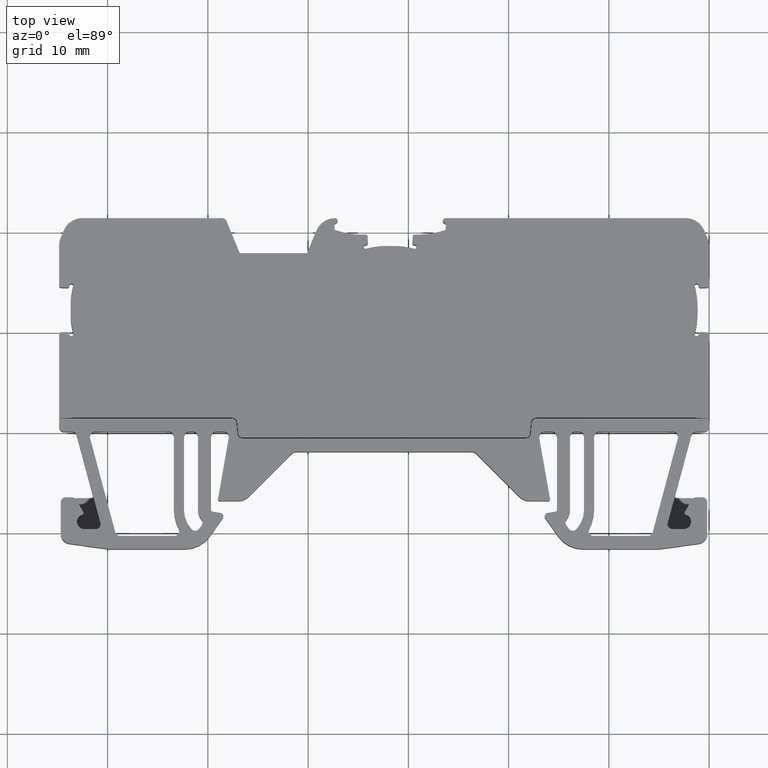
[diagram: clean part render]
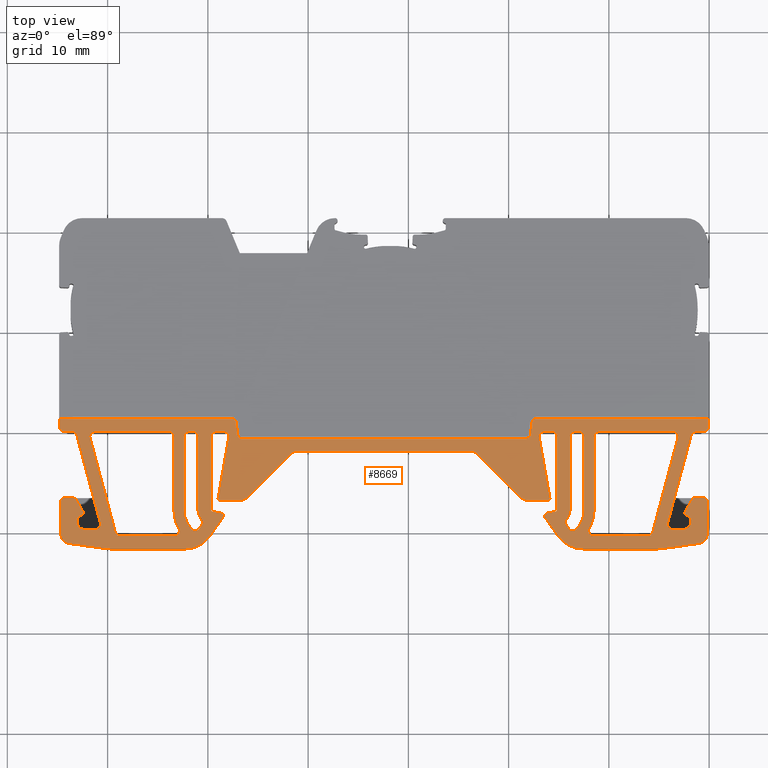
[diagram: same view with one face highlighted and labeled with its STEP entity id]
A machine part, top view. The second image highlights one B-rep face of the part: STEP entity #8669.
In plain terms, the highlighted planar face has unit normal (0, 0, -1).
Its self-contained STEP definition (entity closure, byte-faithful):
#357 = AXIS2_PLACEMENT_3D ( 'NONE', #1739, #1766, #1748 ) ;
#373 = CIRCLE ( 'NONE', #357, 0.5000000000000004400 ) ;
#377 = VECTOR ( 'NONE', #1791, 1000.000000000000000 ) ;
#386 = CIRCLE ( 'NONE', #392, 0.5000000000000004400 ) ;
#388 = CIRCLE ( 'NONE', #395, 0.5000000000000004400 ) ;
#389 = VECTOR ( 'NONE', #1879, 1000.000000000000000 ) ;
#392 = AXIS2_PLACEMENT_3D ( 'NONE', #1881, #1863, #1873 ) ;
#395 = AXIS2_PLACEMENT_3D ( 'NONE', #1869, #1839, #1827 ) ;
#400 = VECTOR ( 'NONE', #1857, 1000.000000000000200 ) ;
#401 = CIRCLE ( 'NONE', #402, 0.5000000000000004400 ) ;
#402 = AXIS2_PLACEMENT_3D ( 'NONE', #1835, #1814, #1810 ) ;
#404 = AXIS2_PLACEMENT_3D ( 'NONE', #1926, #1945, #1904 ) ;
#407 = CIRCLE ( 'NONE', #417, 0.5000001863614891300 ) ;
#410 = CIRCLE ( 'NONE', #433, 0.5000003836889526100 ) ;
#413 = VECTOR ( 'NONE', #1956, 1000.000000000000100 ) ;
#414 = CIRCLE ( 'NONE', #418, 0.4999999999999622500 ) ;
#417 = AXIS2_PLACEMENT_3D ( 'NONE', #1824, #1859, #1867 ) ;
#418 = AXIS2_PLACEMENT_3D ( 'NONE', #1947, #1949, #1918 ) ;
#424 = CIRCLE ( 'NONE', #404, 0.4999997849603650100 ) ;
#433 = AXIS2_PLACEMENT_3D ( 'NONE', #1934, #1936, #1884 ) ;
#436 = VECTOR ( 'NONE', #1984, 1000.000000000000200 ) ;
#439 = VECTOR ( 'NONE', #6264, 1000.000000000000000 ) ;
#440 = VECTOR ( 'NONE', #2050, 999.9999999999998900 ) ;
#448 = VECTOR ( 'NONE', #1972, 1000.000000000000200 ) ;
#450 = CIRCLE ( 'NONE', #452, 1.500000230957764700 ) ;
#452 = AXIS2_PLACEMENT_3D ( 'NONE', #2110, #2106, #2062 ) ;
#453 = AXIS2_PLACEMENT_3D ( 'NONE', #2020, #2040, #1981 ) ;
#454 = VECTOR ( 'NONE', #2008, 1000.000000000000100 ) ;
#456 = CIRCLE ( 'NONE', #453, 0.1999999584227744900 ) ;
#457 = CIRCLE ( 'NONE', #459, 0.5000009730614495300 ) ;
#458 = VECTOR ( 'NONE', #2056, 1000.000000000000100 ) ;
#459 = AXIS2_PLACEMENT_3D ( 'NONE', #2070, #2099, #2078 ) ;
#461 = VECTOR ( 'NONE', #2036, 1000.000000000000000 ) ;
#462 = VECTOR ( 'NONE', #2121, 999.9999999999998900 ) ;
#463 = CIRCLE ( 'NONE', #470, 0.5000001863607952400 ) ;
#464 = VECTOR ( 'NONE', #2086, 1000.000000000000100 ) ;
#465 = VECTOR ( 'NONE', #2114, 1000.000000000000000 ) ;
#466 = VECTOR ( 'NONE', #2108, 1000.000000000000000 ) ;
#467 = CIRCLE ( 'NONE', #469, 0.7500000000003753700 ) ;
#468 = VECTOR ( 'NONE', #2076, 1000.000000000000000 ) ;
#469 = AXIS2_PLACEMENT_3D ( 'NONE', #2089, #2090, #2116 ) ;
#470 = AXIS2_PLACEMENT_3D ( 'NONE', #2074, #2095, #2084 ) ;
#472 = VECTOR ( 'NONE', #2169, 1000.000000000000100 ) ;
#473 = CIRCLE ( 'NONE', #482, 0.4999999142734929400 ) ;
#474 = AXIS2_PLACEMENT_3D ( 'NONE', #2185, #2189, #2195 ) ;
#478 = CIRCLE ( 'NONE', #493, 0.4999999142734946600 ) ;
#480 = VECTOR ( 'NONE', #2173, 1000.000000000000000 ) ;
#481 = VECTOR ( 'NONE', #2183, 1000.000000000000100 ) ;
#482 = AXIS2_PLACEMENT_3D ( 'NONE', #2156, #2150, #2191 ) ;
#483 = CIRCLE ( 'NONE', #486, 0.5000009730614487500 ) ;
#484 = CIRCLE ( 'NONE', #474, 2.999999619128769000 ) ;
#485 = VECTOR ( 'NONE', #2145, 1000.000000000000200 ) ;
#486 = AXIS2_PLACEMENT_3D ( 'NONE', #2201, #2206, #2211 ) ;
#489 = VECTOR ( 'NONE', #2159, 1000.000000000000000 ) ;
#490 = VECTOR ( 'NONE', #2197, 1000.000000000000000 ) ;
#491 = VECTOR ( 'NONE', #2127, 1000.000000000000200 ) ;
#493 = AXIS2_PLACEMENT_3D ( 'NONE', #2154, #2161, #2215 ) ;
#494 = VECTOR ( 'NONE', #2264, 1000.000000000000200 ) ;
#495 = AXIS2_PLACEMENT_3D ( 'NONE', #2380, #2332, #2336 ) ;
#497 = AXIS2_PLACEMENT_3D ( 'NONE', #2227, #2242, #2236 ) ;
#498 = AXIS2_PLACEMENT_3D ( 'NONE', #2294, #2274, #2296 ) ;
#499 = CIRCLE ( 'NONE', #504, 0.5000000000000004400 ) ;
#500 = VECTOR ( 'NONE', #2265, 1000.000000000000100 ) ;
#501 = CIRCLE ( 'NONE', #514, 0.5000003836889699300 ) ;
#502 = CIRCLE ( 'NONE', #509, 0.5000006137988906000 ) ;
#503 = VECTOR ( 'NONE', #2240, 1000.000000000000000 ) ;
#504 = AXIS2_PLACEMENT_3D ( 'NONE', #2248, #2262, #2272 ) ;
#506 = CIRCLE ( 'NONE', #498, 0.5000006137988923800 ) ;
#507 = CIRCLE ( 'NONE', #517, 3.150000000000062500 ) ;
#508 = AXIS2_PLACEMENT_3D ( 'NONE', #2229, #2231, #2244 ) ;
#509 = AXIS2_PLACEMENT_3D ( 'NONE', #2285, #2251, #2302 ) ;
#511 = AXIS2_PLACEMENT_3D ( 'NONE', #2333, #2355, #2334 ) ;
#512 = VECTOR ( 'NONE', #2357, 1000.000000000000100 ) ;
#514 = AXIS2_PLACEMENT_3D ( 'NONE', #2142, #2148, #2151 ) ;
#515 = CIRCLE ( 'NONE', #508, 0.4999997849602574900 ) ;
#516 = VECTOR ( 'NONE', #2247, 1000.000000000000200 ) ;
#517 = AXIS2_PLACEMENT_3D ( 'NONE', #2306, #2307, #2224 ) ;
#518 = AXIS2_PLACEMENT_3D ( 'NONE', #2347, #2351, #2330 ) ;
#519 = CIRCLE ( 'NONE', #520, 0.1999990284319280200 ) ;
#520 = AXIS2_PLACEMENT_3D ( 'NONE', #2249, #2276, #2300 ) ;
#521 = CIRCLE ( 'NONE', #518, 0.3000000621331475000 ) ;
#523 = CIRCLE ( 'NONE', #495, 0.1500006955144558800 ) ;
#524 = CIRCLE ( 'NONE', #511, 2.999999619128769000 ) ;
#525 = CIRCLE ( 'NONE', #497, 0.9999983083041896800 ) ;
#527 = VECTOR ( 'NONE', #2374, 1000.000000000000100 ) ;
#530 = CIRCLE ( 'NONE', #534, 1.500000230957764700 ) ;
#531 = VECTOR ( 'NONE', #2420, 1000.000000000000100 ) ;
#532 = VECTOR ( 'NONE', #2323, 1000.000000000000000 ) ;
#533 = VECTOR ( 'NONE', #2346, 1000.000000000000000 ) ;
#534 = AXIS2_PLACEMENT_3D ( 'NONE', #2452, #2432, #2407 ) ;
#535 = CIRCLE ( 'NONE', #547, 3.149999999998629500 ) ;
#536 = VECTOR ( 'NONE', #2426, 1000.000000000000100 ) ;
#537 = CIRCLE ( 'NONE', #549, 0.5000000000000004400 ) ;
#538 = VECTOR ( 'NONE', #2449, 1000.000000000000200 ) ;
#540 = VECTOR ( 'NONE', #2429, 1000.000000000000000 ) ;
#542 = VECTOR ( 'NONE', #2391, 1000.000000000000000 ) ;
#543 = VECTOR ( 'NONE', #2416, 1000.000000000000100 ) ;
#544 = CIRCLE ( 'NONE', #553, 0.4999999999999414900 ) ;
#545 = CIRCLE ( 'NONE', #552, 1.500000090967115400 ) ;
#546 = VECTOR ( 'NONE', #2342, 1000.000000000000100 ) ;
#547 = AXIS2_PLACEMENT_3D ( 'NONE', #2370, #2349, #2325 ) ;
#548 = VECTOR ( 'NONE', #2388, 1000.000000000000100 ) ;
#549 = AXIS2_PLACEMENT_3D ( 'NONE', #2422, #2477, #2427 ) ;
#551 = CIRCLE ( 'NONE', #554, 0.5000023252126027900 ) ;
#552 = AXIS2_PLACEMENT_3D ( 'NONE', #2455, #2444, #2472 ) ;
#553 = AXIS2_PLACEMENT_3D ( 'NONE', #2442, #2438, #2470 ) ;
#554 = AXIS2_PLACEMENT_3D ( 'NONE', #2476, #2409, #2440 ) ;
#555 = VECTOR ( 'NONE', #2318, 1000.000000000000200 ) ;
#556 = VECTOR ( 'NONE', #2459, 1000.000000000000000 ) ;
#557 = CIRCLE ( 'NONE', #558, 0.5000000000000004400 ) ;
#558 = AXIS2_PLACEMENT_3D ( 'NONE', #2492, #2494, #2529 ) ;
#559 = AXIS2_PLACEMENT_3D ( 'NONE', #2509, #2514, #2557 ) ;
#560 = AXIS2_PLACEMENT_3D ( 'NONE', #2491, #2489, #2484 ) ;
#561 = CIRCLE ( 'NONE', #574, 0.1500006955153648800 ) ;
#562 = VECTOR ( 'NONE', #2515, 1000.000000000000000 ) ;
#563 = AXIS2_PLACEMENT_3D ( 'NONE', #2499, #2547, #2487 ) ;
#564 = AXIS2_PLACEMENT_3D ( 'NONE', #2522, #2523, #2526 ) ;
#566 = CIRCLE ( 'NONE', #559, 2.900002694815535500 ) ;
#567 = CIRCLE ( 'NONE', #579, 3.899999966780160600 ) ;
#568 = CIRCLE ( 'NONE', #564, 0.5000023252126027900 ) ;
#572 = CIRCLE ( 'NONE', #560, 0.5000000000000455200 ) ;
#573 = VECTOR ( 'NONE', #2540, 1000.000000000000200 ) ;
#574 = AXIS2_PLACEMENT_3D ( 'NONE', #2513, #2538, #2518 ) ;
#575 = CIRCLE ( 'NONE', #563, 0.5000027059031895100 ) ;
#576 = VECTOR ( 'NONE', #2554, 1000.000000000000100 ) ;
#577 = CIRCLE ( 'NONE', #597, 0.4999998012110845600 ) ;
#578 = VECTOR ( 'NONE', #2508, 1000.000000000000200 ) ;
#579 = AXIS2_PLACEMENT_3D ( 'NONE', #2559, #2543, #2497 ) ;
#580 = VECTOR ( 'NONE', #2548, 1000.000000000000000 ) ;
#581 = CIRCLE ( 'NONE', #587, 0.4999994425533282900 ) ;
#582 = AXIS2_PLACEMENT_3D ( 'NONE', #2576, #2581, #2602 ) ;
#583 = VECTOR ( 'NONE', #6119, 1000.000000000000100 ) ;
#584 = AXIS2_PLACEMENT_3D ( 'NONE', #2599, #2577, #2575 ) ;
#585 = CIRCLE ( 'NONE', #599, 0.1999999584227762400 ) ;
#586 = VECTOR ( 'NONE', #2596, 1000.000000000000100 ) ;
#587 = AXIS2_PLACEMENT_3D ( 'NONE', #2598, #2571, #2572 ) ;
#588 = CIRCLE ( 'NONE', #604, 0.5000000000000004400 ) ;
#589 = CIRCLE ( 'NONE', #584, 0.7500000000002158300 ) ;
#590 = AXIS2_PLACEMENT_3D ( 'NONE', #2616, #2651, #1760 ) ;
#591 = VECTOR ( 'NONE', #6109, 1000.000000000000000 ) ;
#592 = CIRCLE ( 'NONE', #582, 0.5000001020558364500 ) ;
#593 = VECTOR ( 'NONE', #2585, 1000.000000000000200 ) ;
#594 = CIRCLE ( 'NONE', #595, 0.1999990284319297400 ) ;
#595 = AXIS2_PLACEMENT_3D ( 'NONE', #2567, #2588, #2592 ) ;
#596 = CIRCLE ( 'NONE', #590, 0.3000000621331492300 ) ;
#597 = AXIS2_PLACEMENT_3D ( 'NONE', #2578, #2562, #2573 ) ;
#598 = CIRCLE ( 'NONE', #602, 0.5000027059031895100 ) ;
#599 = AXIS2_PLACEMENT_3D ( 'NONE', #2601, #2593, #2597 ) ;
#600 = VECTOR ( 'NONE', #2570, 1000.000000000000000 ) ;
#602 = AXIS2_PLACEMENT_3D ( 'NONE', #2587, #2591, #2579 ) ;
#604 = AXIS2_PLACEMENT_3D ( 'NONE', #2600, #2574, #2589 ) ;
#605 = VECTOR ( 'NONE', #2583, 1000.000000000000000 ) ;
#606 = VECTOR ( 'NONE', #2603, 999.9999999999998900 ) ;
#608 = AXIS2_PLACEMENT_3D ( 'NONE', #6116, #6117, #6118 ) ;
#611 = VECTOR ( 'NONE', #6130, 1000.000000000000000 ) ;
#613 = CIRCLE ( 'NONE', #633, 0.4999999999999414900 ) ;
#615 = AXIS2_PLACEMENT_3D ( 'NONE', #6103, #6104, #6113 ) ;
#616 = VECTOR ( 'NONE', #6133, 1000.000000000000000 ) ;
#617 = AXIS2_PLACEMENT_3D ( 'NONE', #6095, #6099, #6097 ) ;
#618 = AXIS2_PLACEMENT_3D ( 'NONE', #6136, #6139, #6147 ) ;
#619 = CIRCLE ( 'NONE', #617, 1.500000090967113600 ) ;
#620 = VECTOR ( 'NONE', #6120, 1000.000000000000100 ) ;
#621 = CIRCLE ( 'NONE', #632, 0.4999994425533282900 ) ;
#624 = VECTOR ( 'NONE', #6112, 1000.000000000000100 ) ;
#627 = CIRCLE ( 'NONE', #615, 0.5000000000000004400 ) ;
#628 = CIRCLE ( 'NONE', #618, 2.900002694815533700 ) ;
#629 = VECTOR ( 'NONE', #6125, 1000.000000000000200 ) ;
#630 = CIRCLE ( 'NONE', #608, 3.899999966780160600 ) ;
#632 = AXIS2_PLACEMENT_3D ( 'NONE', #6137, #6153, #6154 ) ;
#633 = AXIS2_PLACEMENT_3D ( 'NONE', #6124, #6114, #6111 ) ;
#634 = AXIS2_PLACEMENT_3D ( 'NONE', #6102, #6105, #6096 ) ;
#637 = AXIS2_PLACEMENT_3D ( 'NONE', #6131, #6135, #6160 ) ;
#639 = CIRCLE ( 'NONE', #634, 0.5000000000000455200 ) ;
#642 = VECTOR ( 'NONE', #6155, 1000.000000000000000 ) ;
#643 = CIRCLE ( 'NONE', #637, 0.4999998012116153600 ) ;
#750 = CIRCLE ( 'NONE', #788, 0.4999999142734929400 ) ;
#754 = CIRCLE ( 'NONE', #780, 0.5000001863614891300 ) ;
#758 = CIRCLE ( 'NONE', #759, 0.3000000621331492300 ) ;
#759 = AXIS2_PLACEMENT_3D ( 'NONE', #2471, #2467, #2469 ) ;
#763 = CIRCLE ( 'NONE', #811, 0.1999990284319297400 ) ;
#780 = AXIS2_PLACEMENT_3D ( 'NONE', #2358, #2361, #2350 ) ;
#788 = AXIS2_PLACEMENT_3D ( 'NONE', #2431, #2485, #2434 ) ;
#790 = AXIS2_PLACEMENT_3D ( 'NONE', #2237, #2254, #2314 ) ;
#796 = CIRCLE ( 'NONE', #790, 0.4999994425533282900 ) ;
#804 = CIRCLE ( 'NONE', #807, 0.5000000000000455200 ) ;
#807 = AXIS2_PLACEMENT_3D ( 'NONE', #2524, #2505, #2503 ) ;
#811 = AXIS2_PLACEMENT_3D ( 'NONE', #2418, #2456, #2419 ) ;
#821 = AXIS2_PLACEMENT_3D ( 'NONE', #1032, #1005, #1000 ) ;
#828 = CIRCLE ( 'NONE', #821, 0.7500000000003753700 ) ;
#838 = CIRCLE ( 'NONE', #855, 0.1500006955153648800 ) ;
#855 = AXIS2_PLACEMENT_3D ( 'NONE', #1053, #1103, #1095 ) ;
#886 = CIRCLE ( 'NONE', #887, 0.9999983083033535700 ) ;
#887 = AXIS2_PLACEMENT_3D ( 'NONE', #2610, #2607, #2639 ) ;
#895 = CIRCLE ( 'NONE', #896, 0.5000000000000004400 ) ;
#896 = AXIS2_PLACEMENT_3D ( 'NONE', #2644, #2645, #2615 ) ;
#903 = VECTOR ( 'NONE', #1140, 1000.000000000000100 ) ;
#914 = VECTOR ( 'NONE', #2631, 1000.000000000000100 ) ;
#991 = VECTOR ( 'NONE', #1323, 1000.000000000000100 ) ;
#1000 = DIRECTION ( 'NONE',  ( -1.000000000000000000, 0.0000000000000000000, 0.0000000000000000000 ) ) ;
#1005 = DIRECTION ( 'NONE',  ( 0.0000000000000000000, 0.0000000000000000000, -1.000000000000000000 ) ) ;
#1032 = CARTESIAN_POINT ( 'NONE',  ( -32.30402709066323300, -118.9114780094676300, 5.700000000000000200 ) ) ;
#1053 = CARTESIAN_POINT ( 'NONE',  ( 27.68728649239311300, -118.0443098888480300, 5.700000000000000200 ) ) ;
#1095 = DIRECTION ( 'NONE',  ( -1.000000000000000000, 0.0000000000000000000, 0.0000000000000000000 ) ) ;
#1103 = DIRECTION ( 'NONE',  ( 0.0000000000000000000, 0.0000000000000000000, -1.000000000000000000 ) ) ;
#1140 = DIRECTION ( 'NONE',  ( -2.453663121797204800E-007, -0.9999999999999699100, -0.0000000000000000000 ) ) ;
#1238 = CARTESIAN_POINT ( 'NONE',  ( 11.23436169216171400, -120.9336254661880300, 5.700000000000000200 ) ) ;
#1244 = LINE ( 'NONE', #1238, #991 ) ;
#1323 = DIRECTION ( 'NONE',  ( 0.08913673670955717100, 0.9960193984901956100, 0.0000000000000000000 ) ) ;
#1730 = CARTESIAN_POINT ( 'NONE',  ( -53.89831438740593900, -108.6181273822596400, 5.700000000000000200 ) ) ;
#1739 = CARTESIAN_POINT ( 'NONE',  ( 12.79376399311461800, -109.1181273822596400, 5.700000000000000200 ) ) ;
#1748 = DIRECTION ( 'NONE',  ( -1.000000000000000000, 0.0000000000000000000, 0.0000000000000000000 ) ) ;
#1760 = DIRECTION ( 'NONE',  ( -1.000000000000000000, 0.0000000000000000000, 0.0000000000000000000 ) ) ;
#1766 = DIRECTION ( 'NONE',  ( -0.0000000000000000000, -0.0000000000000000000, 1.000000000000000000 ) ) ;
#1791 = DIRECTION ( 'NONE',  ( 1.000000000000000000, -1.290957005378100000E-015, 0.0000000000000000000 ) ) ;
#1795 = LINE ( 'NONE', #1730, #377 ) ;
#1810 = DIRECTION ( 'NONE',  ( -1.000000000000000000, 2.775557561562888800E-014, 0.0000000000000000000 ) ) ;
#1814 = DIRECTION ( 'NONE',  ( -0.0000000000000000000, -0.0000000000000000000, 1.000000000000000000 ) ) ;
#1824 = CARTESIAN_POINT ( 'NONE',  ( 26.34615405794510300, -119.1615620762482500, 5.700000000000000200 ) ) ;
#1827 = DIRECTION ( 'NONE',  ( -1.000000000000000000, 0.0000000000000000000, 0.0000000000000000000 ) ) ;
#1830 = LINE ( 'NONE', #1865, #400 ) ;
#1835 = CARTESIAN_POINT ( 'NONE',  ( -17.64315052709798700, -109.1181273822596400, 5.700000000000000200 ) ) ;
#1839 = DIRECTION ( 'NONE',  ( -0.0000000000000000000, -0.0000000000000000000, 1.000000000000000000 ) ) ;
#1846 = CARTESIAN_POINT ( 'NONE',  ( -19.35386479478710300, -110.6092615996412400, 5.700000000000000200 ) ) ;
#1857 = DIRECTION ( 'NONE',  ( 0.08715574274766133000, -0.9961946980917452100, 0.0000000000000000000 ) ) ;
#1859 = DIRECTION ( 'NONE',  ( -0.0000000000000000000, -0.0000000000000000000, 1.000000000000000000 ) ) ;
#1861 = LINE ( 'NONE', #1846, #389 ) ;
#1863 = DIRECTION ( 'NONE',  ( -0.0000000000000000000, -0.0000000000000000000, 1.000000000000000000 ) ) ;
#1865 = CARTESIAN_POINT ( 'NONE',  ( -16.89836747389668400, -111.8941800117258400, 5.700000000000000200 ) ) ;
#1867 = DIRECTION ( 'NONE',  ( -1.000000000000000000, 0.0000000000000000000, 0.0000000000000000000 ) ) ;
#1869 = CARTESIAN_POINT ( 'NONE',  ( -16.55261768150108300, -110.1092615996412400, 5.700000000000000200 ) ) ;
#1873 = DIRECTION ( 'NONE',  ( -1.000000000000000000, 0.0000000000000000000, 0.0000000000000000000 ) ) ;
#1879 = DIRECTION ( 'NONE',  ( 1.000000000000000000, -0.0000000000000000000, -0.0000000000000000000 ) ) ;
#1881 = CARTESIAN_POINT ( 'NONE',  ( 11.70106793576041000, -110.1092615996412400, 5.700000000000000200 ) ) ;
#1884 = DIRECTION ( 'NONE',  ( -1.000000000000000000, 0.0000000000000000000, 0.0000000000000000000 ) ) ;
#1904 = DIRECTION ( 'NONE',  ( -1.000000000000000000, 2.775558755273174700E-014, 0.0000000000000000000 ) ) ;
#1918 = DIRECTION ( 'NONE',  ( -1.000000000000000000, 0.0000000000000000000, 0.0000000000000000000 ) ) ;
#1921 = CARTESIAN_POINT ( 'NONE',  ( -53.89829148723726600, -109.9177587714170400, 5.700000000000000200 ) ) ;
#1926 = CARTESIAN_POINT ( 'NONE',  ( 28.68862918085350700, -110.4181222330030500, 5.700000000000000200 ) ) ;
#1934 = CARTESIAN_POINT ( 'NONE',  ( 29.32026189051851600, -116.9614702480128400, 5.700000000000000200 ) ) ;
#1936 = DIRECTION ( 'NONE',  ( 0.0000000000000000000, 0.0000000000000000000, -1.000000000000000000 ) ) ;
#1944 = LINE ( 'NONE', #2043, #448 ) ;
#1945 = DIRECTION ( 'NONE',  ( -0.0000000000000000000, -0.0000000000000000000, 1.000000000000000000 ) ) ;
#1947 = CARTESIAN_POINT ( 'NONE',  ( 29.47119226637232000, -109.4181258941028400, 5.700000000000000200 ) ) ;
#1949 = DIRECTION ( 'NONE',  ( 0.0000000000000000000, 0.0000000000000000000, -1.000000000000000000 ) ) ;
#1955 = LINE ( 'NONE', #1921, #413 ) ;
#1956 = DIRECTION ( 'NONE',  ( -0.9999999999903043100, 4.403562001617840400E-006, -0.0000000000000000000 ) ) ;
#1963 = CARTESIAN_POINT ( 'NONE',  ( 11.82631027322381100, -103.5555417081756400, 5.700000000000000200 ) ) ;
#1972 = DIRECTION ( 'NONE',  ( 0.9999999977293819700, 6.738869203813639000E-005, -0.0000000000000000000 ) ) ;
#1973 = LINE ( 'NONE', #2005, #454 ) ;
#1981 = DIRECTION ( 'NONE',  ( -1.000000000000000000, 0.0000000000000000000, 0.0000000000000000000 ) ) ;
#1984 = DIRECTION ( 'NONE',  ( -0.1736484009891504900, 0.9848077136344490800, -0.0000000000000000000 ) ) ;
#1996 = LINE ( 'NONE', #2013, #440 ) ;
#2003 = LINE ( 'NONE', #1963, #436 ) ;
#2005 = CARTESIAN_POINT ( 'NONE',  ( -10.11473166358878300, -84.56417357522974500, 5.700000000000000200 ) ) ;
#2006 = CARTESIAN_POINT ( 'NONE',  ( -34.67787819375448100, -115.1181279389488500, 5.700000000000000200 ) ) ;
#2008 = DIRECTION ( 'NONE',  ( 0.5735940153013039400, -0.8191397350944023000, -0.0000000000000000000 ) ) ;
#2013 = CARTESIAN_POINT ( 'NONE',  ( -54.18016875091323200, -118.3983856528216400, 5.700000000000000200 ) ) ;
#2020 = CARTESIAN_POINT ( 'NONE',  ( -19.48267628821218600, -117.6987962867720400, 5.700000000000000200 ) ) ;
#2023 = LINE ( 'NONE', #2033, #461 ) ;
#2024 = LINE ( 'NONE', #2006, #458 ) ;
#2033 = CARTESIAN_POINT ( 'NONE',  ( -38.98116072838370600, -106.5940556016126800, 5.700000000000000200 ) ) ;
#2036 = DIRECTION ( 'NONE',  ( 0.4999233245053678100, -0.8660696678763786200, 0.0000000000000000000 ) ) ;
#2040 = DIRECTION ( 'NONE',  ( 0.0000000000000000000, 0.0000000000000000000, -1.000000000000000000 ) ) ;
#2043 = CARTESIAN_POINT ( 'NONE',  ( -54.04800784721646800, -119.6669698118178100, 5.700000000000000200 ) ) ;
#2050 = DIRECTION ( 'NONE',  ( 0.9914448277838499000, -0.1305264473608795700, 0.0000000000000000000 ) ) ;
#2052 = CARTESIAN_POINT ( 'NONE',  ( -53.89831278392256300, -121.6180953206663100, 5.700000000000000200 ) ) ;
#2056 = DIRECTION ( 'NONE',  ( 2.453662456189425000E-007, -0.9999999999999699100, 0.0000000000000000000 ) ) ;
#2058 = CARTESIAN_POINT ( 'NONE',  ( -53.74831438740593400, -111.9092055198388400, 5.700000000000000200 ) ) ;
#2060 = CARTESIAN_POINT ( 'NONE',  ( -53.74831527192846900, -116.4614569780146400, 5.700000000000000200 ) ) ;
#2062 = DIRECTION ( 'NONE',  ( -1.000000000000000000, 0.0000000000000000000, 0.0000000000000000000 ) ) ;
#2064 = LINE ( 'NONE', #2143, #490 ) ;
#2066 = LINE ( 'NONE', #2125, #465 ) ;
#2070 = CARTESIAN_POINT ( 'NONE',  ( -11.23465944331247700, -112.4092064929000400, 5.700000000000000200 ) ) ;
#2074 = CARTESIAN_POINT ( 'NONE',  ( -31.20376952519988100, -119.1615620762482500, 5.700000000000000200 ) ) ;
#2076 = DIRECTION ( 'NONE',  ( -0.9999999999999695800, -2.466911651836488500E-007, -0.0000000000000000000 ) ) ;
#2078 = DIRECTION ( 'NONE',  ( -1.000000000000000000, 0.0000000000000000000, 0.0000000000000000000 ) ) ;
#2084 = DIRECTION ( 'NONE',  ( -1.000000000000000000, 0.0000000000000000000, 0.0000000000000000000 ) ) ;
#2086 = DIRECTION ( 'NONE',  ( 0.9999999999997831700, -6.584578971020009500E-007, 0.0000000000000000000 ) ) ;
#2089 = CARTESIAN_POINT ( 'NONE',  ( -32.30402709066323300, -118.9114780094676300, 5.700000000000000200 ) ) ;
#2090 = DIRECTION ( 'NONE',  ( 0.0000000000000000000, 0.0000000000000000000, -1.000000000000000000 ) ) ;
#2092 = LINE ( 'NONE', #2119, #462 ) ;
#2095 = DIRECTION ( 'NONE',  ( 0.0000000000000000000, 0.0000000000000000000, -1.000000000000000000 ) ) ;
#2097 = LINE ( 'NONE', #2135, #491 ) ;
#2099 = DIRECTION ( 'NONE',  ( 0.0000000000000000000, 0.0000000000000000000, -1.000000000000000000 ) ) ;
#2106 = DIRECTION ( 'NONE',  ( -0.0000000000000000000, -0.0000000000000000000, 1.000000000000000000 ) ) ;
#2108 = DIRECTION ( 'NONE',  ( 1.000000000000000000, 0.0000000000000000000, 0.0000000000000000000 ) ) ;
#2110 = CARTESIAN_POINT ( 'NONE',  ( 12.10616148314801200, -115.3098920652996400, 5.700000000000000200 ) ) ;
#2114 = DIRECTION ( 'NONE',  ( 0.0000000000000000000, 1.000000000000000000, 0.0000000000000000000 ) ) ;
#2116 = DIRECTION ( 'NONE',  ( -1.000000000000000000, 0.0000000000000000000, 0.0000000000000000000 ) ) ;
#2117 = LINE ( 'NONE', #2060, #464 ) ;
#2119 = CARTESIAN_POINT ( 'NONE',  ( -54.33016875091323100, -118.3983856528216400, 5.700000000000000200 ) ) ;
#2121 = DIRECTION ( 'NONE',  ( 0.9914448277838499000, -0.1305264473608795700, 0.0000000000000000000 ) ) ;
#2122 = LINE ( 'NONE', #2052, #468 ) ;
#2125 = CARTESIAN_POINT ( 'NONE',  ( -32.21543983673953400, -115.1181326181902400, 5.700000000000000200 ) ) ;
#2127 = DIRECTION ( 'NONE',  ( 0.9999999999993145500, 1.170744802249963400E-006, -0.0000000000000000000 ) ) ;
#2131 = LINE ( 'NONE', #2058, #466 ) ;
#2135 = CARTESIAN_POINT ( 'NONE',  ( -53.74831240669683300, -116.8099693950412400, 5.700000000000000200 ) ) ;
#2139 = CARTESIAN_POINT ( 'NONE',  ( 29.97119226637229200, -115.1181326181905000, 5.700000000000000200 ) ) ;
#2142 = CARTESIAN_POINT ( 'NONE',  ( -34.17787735777333300, -116.9614702480128400, 5.700000000000000200 ) ) ;
#2143 = CARTESIAN_POINT ( 'NONE',  ( -34.82880773362698100, -180.2921287462591200, 5.700000000000000200 ) ) ;
#2145 = DIRECTION ( 'NONE',  ( 0.9999999977293819700, 6.738869203813639000E-005, -0.0000000000000000000 ) ) ;
#2148 = DIRECTION ( 'NONE',  ( 0.0000000000000000000, 0.0000000000000000000, -1.000000000000000000 ) ) ;
#2150 = DIRECTION ( 'NONE',  ( 0.0000000000000000000, 0.0000000000000000000, -1.000000000000000000 ) ) ;
#2151 = DIRECTION ( 'NONE',  ( -1.000000000000000000, 0.0000000000000000000, 0.0000000000000000000 ) ) ;
#2154 = CARTESIAN_POINT ( 'NONE',  ( -18.40168880697749300, -110.4180661946136400, 5.700000000000000200 ) ) ;
#2156 = CARTESIAN_POINT ( 'NONE',  ( 13.54407333972261500, -110.4180661946136400, 5.700000000000000200 ) ) ;
#2159 = DIRECTION ( 'NONE',  ( -3.014257442263465400E-015, -1.000000000000000000, -0.0000000000000000000 ) ) ;
#2161 = DIRECTION ( 'NONE',  ( -0.0000000000000000000, -0.0000000000000000000, 1.000000000000000000 ) ) ;
#2163 = LINE ( 'NONE', #2187, #480 ) ;
#2168 = CARTESIAN_POINT ( 'NONE',  ( -34.19951923661719200, -134.6669418462730300, 5.700000000000000200 ) ) ;
#2169 = DIRECTION ( 'NONE',  ( 0.7071070357839436300, 0.7071065265890597000, 0.0000000000000000000 ) ) ;
#2173 = DIRECTION ( 'NONE',  ( 1.000000000000000000, -0.0000000000000000000, -0.0000000000000000000 ) ) ;
#2174 = LINE ( 'NONE', #2179, #481 ) ;
#2177 = CARTESIAN_POINT ( 'NONE',  ( -53.89800784721646900, -119.6669698118178100, 5.700000000000000200 ) ) ;
#2179 = CARTESIAN_POINT ( 'NONE',  ( -53.19036448266098200, -111.9553933368048300, 5.700000000000000200 ) ) ;
#2183 = DIRECTION ( 'NONE',  ( 0.9847931789485838700, -0.1737308110161875100, 0.0000000000000000000 ) ) ;
#2185 = CARTESIAN_POINT ( 'NONE',  ( -22.25115192336559000, -118.6180781144680300, 5.700000000000000200 ) ) ;
#2187 = CARTESIAN_POINT ( 'NONE',  ( -26.80000734733671700, -121.6180766484379800, 5.700000000000000200 ) ) ;
#2189 = DIRECTION ( 'NONE',  ( -0.0000000000000000000, -0.0000000000000000000, 1.000000000000000000 ) ) ;
#2191 = DIRECTION ( 'NONE',  ( -1.000000000000000000, 0.0000000000000000000, 0.0000000000000000000 ) ) ;
#2192 = LINE ( 'NONE', #2168, #472 ) ;
#2195 = DIRECTION ( 'NONE',  ( -1.000000000000000000, 0.0000000000000000000, 0.0000000000000000000 ) ) ;
#2197 = DIRECTION ( 'NONE',  ( 1.883910901414665200E-015, -1.000000000000000000, 0.0000000000000000000 ) ) ;
#2199 = LINE ( 'NONE', #2177, #485 ) ;
#2201 = CARTESIAN_POINT ( 'NONE',  ( 6.377043976057719600, -112.4092064929000400, 5.700000000000000200 ) ) ;
#2206 = DIRECTION ( 'NONE',  ( 0.0000000000000000000, 0.0000000000000000000, -1.000000000000000000 ) ) ;
#2208 = LINE ( 'NONE', #2139, #489 ) ;
#2211 = DIRECTION ( 'NONE',  ( -1.000000000000000000, 0.0000000000000000000, 0.0000000000000000000 ) ) ;
#2215 = DIRECTION ( 'NONE',  ( -1.000000000000000000, -2.775558037440673000E-014, 0.0000000000000000000 ) ) ;
#2224 = DIRECTION ( 'NONE',  ( -1.000000000000000000, 0.0000000000000000000, 0.0000000000000000000 ) ) ;
#2227 = CARTESIAN_POINT ( 'NONE',  ( -33.67787866578038300, -120.0889414278888400, 5.700000000000000200 ) ) ;
#2229 = CARTESIAN_POINT ( 'NONE',  ( -33.54624464810828500, -110.4181222330030500, 5.700000000000000200 ) ) ;
#2231 = DIRECTION ( 'NONE',  ( 0.0000000000000000000, 0.0000000000000000000, -1.000000000000000000 ) ) ;
#2236 = DIRECTION ( 'NONE',  ( -1.000000000000000000, 0.0000000000000000000, 0.0000000000000000000 ) ) ;
#2237 = CARTESIAN_POINT ( 'NONE',  ( 16.17229012860221700, -118.9661082466472500, 5.700000000000000200 ) ) ;
#2238 = CARTESIAN_POINT ( 'NONE',  ( -19.68267624663188500, -115.1181326181902400, 5.700000000000000200 ) ) ;
#2240 = DIRECTION ( 'NONE',  ( 0.0000000000000000000, -1.000000000000000000, 0.0000000000000000000 ) ) ;
#2242 = DIRECTION ( 'NONE',  ( -0.0000000000000000000, -0.0000000000000000000, 1.000000000000000000 ) ) ;
#2244 = DIRECTION ( 'NONE',  ( -1.000000000000000000, 0.0000000000000000000, 0.0000000000000000000 ) ) ;
#2246 = LINE ( 'NONE', #2288, #500 ) ;
#2247 = DIRECTION ( 'NONE',  ( -0.9999999977293819700, 6.738869213803599800E-005, 0.0000000000000000000 ) ) ;
#2248 = CARTESIAN_POINT ( 'NONE',  ( -34.32880773362713700, -109.4181258941028400, 5.700000000000000200 ) ) ;
#2249 = CARTESIAN_POINT ( 'NONE',  ( 13.92506300176882300, -116.6098911383726500, 5.700000000000000200 ) ) ;
#2251 = DIRECTION ( 'NONE',  ( -0.0000000000000000000, -0.0000000000000000000, 1.000000000000000000 ) ) ;
#2254 = DIRECTION ( 'NONE',  ( 0.0000000000000000000, 0.0000000000000000000, -1.000000000000000000 ) ) ;
#2262 = DIRECTION ( 'NONE',  ( -0.0000000000000000000, -0.0000000000000000000, 1.000000000000000000 ) ) ;
#2264 = DIRECTION ( 'NONE',  ( 0.9999999999993145500, -1.170744802249963400E-006, 0.0000000000000000000 ) ) ;
#2265 = DIRECTION ( 'NONE',  ( 0.9999999999903043100, 4.403561824279676000E-006, 0.0000000000000000000 ) ) ;
#2266 = LINE ( 'NONE', #2238, #503 ) ;
#2270 = LINE ( 'NONE', #2291, #516 ) ;
#2272 = DIRECTION ( 'NONE',  ( -1.000000000000000000, 0.0000000000000000000, 0.0000000000000000000 ) ) ;
#2274 = DIRECTION ( 'NONE',  ( 0.0000000000000000000, 0.0000000000000000000, -1.000000000000000000 ) ) ;
#2275 = CARTESIAN_POINT ( 'NONE',  ( -53.74831636797438300, -116.8098492309498400, 5.700000000000000200 ) ) ;
#2276 = DIRECTION ( 'NONE',  ( -0.0000000000000000000, -0.0000000000000000000, 1.000000000000000000 ) ) ;
#2278 = LINE ( 'NONE', #2275, #494 ) ;
#2285 = CARTESIAN_POINT ( 'NONE',  ( -19.18267563283287900, -110.4180656665414400, 5.700000000000000200 ) ) ;
#2288 = CARTESIAN_POINT ( 'NONE',  ( -53.89833728557759000, -109.9182120697410300, 5.700000000000000200 ) ) ;
#2291 = CARTESIAN_POINT ( 'NONE',  ( -53.74862046012553700, -119.6600328863642300, 5.700000000000000200 ) ) ;
#2294 = CARTESIAN_POINT ( 'NONE',  ( 14.32506016557812100, -110.4180656665414400, 5.700000000000000200 ) ) ;
#2296 = DIRECTION ( 'NONE',  ( -1.000000000000000000, 0.0000000000000000000, 0.0000000000000000000 ) ) ;
#2300 = DIRECTION ( 'NONE',  ( -1.000000000000000000, 0.0000000000000000000, 0.0000000000000000000 ) ) ;
#2302 = DIRECTION ( 'NONE',  ( -1.000000000000000000, 0.0000000000000000000, 0.0000000000000000000 ) ) ;
#2306 = CARTESIAN_POINT ( 'NONE',  ( -29.66730904475407700, -118.4681378541208300, 5.700000000000000200 ) ) ;
#2307 = DIRECTION ( 'NONE',  ( -0.0000000000000000000, -0.0000000000000000000, 1.000000000000000000 ) ) ;
#2310 = CARTESIAN_POINT ( 'NONE',  ( -53.89862046012553500, -119.6600328863642300, 5.700000000000000200 ) ) ;
#2312 = LINE ( 'NONE', #2315, #532 ) ;
#2314 = DIRECTION ( 'NONE',  ( -1.000000000000000000, 0.0000000000000000000, 0.0000000000000000000 ) ) ;
#2315 = CARTESIAN_POINT ( 'NONE',  ( -53.74831599088308600, -121.6180699635246500, 5.700000000000000200 ) ) ;
#2316 = CARTESIAN_POINT ( 'NONE',  ( -33.25139521760933500, -109.5865679288760400, 5.700000000000000200 ) ) ;
#2318 = DIRECTION ( 'NONE',  ( -0.9999999977293819700, 6.738869213803599800E-005, 0.0000000000000000000 ) ) ;
#2323 = DIRECTION ( 'NONE',  ( 0.9999999999999695800, -2.466911651836488500E-007, 0.0000000000000000000 ) ) ;
#2325 = DIRECTION ( 'NONE',  ( -1.000000000000000000, -4.405646923117617600E-015, 0.0000000000000000000 ) ) ;
#2326 = CARTESIAN_POINT ( 'NONE',  ( 21.49994240003323800, -135.3182569782200900, 5.700000000000000200 ) ) ;
#2328 = CARTESIAN_POINT ( 'NONE',  ( -21.97763984012208400, -83.34743519250784500, 5.700000000000000200 ) ) ;
#2330 = DIRECTION ( 'NONE',  ( -1.000000000000000000, 4.625928311193198500E-014, 0.0000000000000000000 ) ) ;
#2332 = DIRECTION ( 'NONE',  ( 0.0000000000000000000, 0.0000000000000000000, -1.000000000000000000 ) ) ;
#2333 = CARTESIAN_POINT ( 'NONE',  ( 17.39353645611072000, -118.6180781144680300, 5.700000000000000200 ) ) ;
#2334 = DIRECTION ( 'NONE',  ( -1.000000000000000000, 0.0000000000000000000, 0.0000000000000000000 ) ) ;
#2336 = DIRECTION ( 'NONE',  ( -1.000000000000000000, 0.0000000000000000000, 0.0000000000000000000 ) ) ;
#2338 = LINE ( 'NONE', #2326, #546 ) ;
#2340 = LINE ( 'NONE', #2390, #533 ) ;
#2342 = DIRECTION ( 'NONE',  ( -0.2587858438379434000, -0.9659347219295326700, -0.0000000000000000000 ) ) ;
#2346 = DIRECTION ( 'NONE',  ( 1.000000000000000000, -1.290957005378100000E-015, 0.0000000000000000000 ) ) ;
#2347 = CARTESIAN_POINT ( 'NONE',  ( -18.75652320401038200, -118.3346203340744300, 5.700000000000000200 ) ) ;
#2349 = DIRECTION ( 'NONE',  ( -0.0000000000000000000, -0.0000000000000000000, 1.000000000000000000 ) ) ;
#2350 = DIRECTION ( 'NONE',  ( -1.000000000000000000, 1.110222610819678500E-013, 0.0000000000000000000 ) ) ;
#2351 = DIRECTION ( 'NONE',  ( -0.0000000000000000000, -0.0000000000000000000, 1.000000000000000000 ) ) ;
#2353 = LINE ( 'NONE', #2316, #548 ) ;
#2355 = DIRECTION ( 'NONE',  ( 0.0000000000000000000, 0.0000000000000000000, -1.000000000000000000 ) ) ;
#2357 = DIRECTION ( 'NONE',  ( 0.7071070357839436300, -0.7071065265890597000, -0.0000000000000000000 ) ) ;
#2358 = CARTESIAN_POINT ( 'NONE',  ( 26.34615405794510300, -119.1615620762482500, 5.700000000000000200 ) ) ;
#2361 = DIRECTION ( 'NONE',  ( -0.0000000000000000000, -0.0000000000000000000, 1.000000000000000000 ) ) ;
#2370 = CARTESIAN_POINT ( 'NONE',  ( 24.80969357749932100, -118.4681378541208300, 5.700000000000000200 ) ) ;
#2372 = CARTESIAN_POINT ( 'NONE',  ( -53.74832256099093500, -109.9181720542416400, 5.700000000000000200 ) ) ;
#2374 = DIRECTION ( 'NONE',  ( 0.9999999999987646500, 1.571855185924339400E-006, -0.0000000000000000000 ) ) ;
#2377 = LINE ( 'NONE', #2328, #512 ) ;
#2380 = CARTESIAN_POINT ( 'NONE',  ( -32.54490195964783800, -118.0443098888480300, 5.700000000000000200 ) ) ;
#2383 = LINE ( 'NONE', #2372, #527 ) ;
#2385 = LINE ( 'NONE', #2386, #542 ) ;
#2386 = CARTESIAN_POINT ( 'NONE',  ( -53.89831599088308400, -121.6180699635246500, 5.700000000000000200 ) ) ;
#2388 = DIRECTION ( 'NONE',  ( 0.2587858438378640200, -0.9659347219295538700, 0.0000000000000000000 ) ) ;
#2390 = CARTESIAN_POINT ( 'NONE',  ( -53.74831438740593400, -108.6181273822596400, 5.700000000000000200 ) ) ;
#2391 = DIRECTION ( 'NONE',  ( 0.9999999999999695800, -2.466911651836488500E-007, 0.0000000000000000000 ) ) ;
#2394 = LINE ( 'NONE', #2310, #555 ) ;
#2397 = LINE ( 'NONE', #2405, #540 ) ;
#2399 = CARTESIAN_POINT ( 'NONE',  ( -20.85734156677057200, -119.5913706128750200, 5.699994069635534000 ) ) ;
#2401 = LINE ( 'NONE', #6110, #591 ) ;
#2403 = CARTESIAN_POINT ( 'NONE',  ( -20.85783399024445100, -119.5920719142930700, 5.699998521034324900 ) ) ;
#2405 = CARTESIAN_POINT ( 'NONE',  ( -9.049629243005687900, -83.81856650151472400, 5.700000000000000200 ) ) ;
#2407 = DIRECTION ( 'NONE',  ( -1.000000000000000000, 0.0000000000000000000, 0.0000000000000000000 ) ) ;
#2409 = DIRECTION ( 'NONE',  ( -0.0000000000000000000, -0.0000000000000000000, 1.000000000000000000 ) ) ;
#2411 = CARTESIAN_POINT ( 'NONE',  ( -51.35384572205465000, -129.5414543711341400, 5.700000000000000200 ) ) ;
#2413 = CARTESIAN_POINT ( 'NONE',  ( -20.85857547186016000, -119.5931212161549600, 5.700000000000000200 ) ) ;
#2416 = DIRECTION ( 'NONE',  ( 0.9999999999997831700, 6.584578741180219700E-007, -0.0000000000000000000 ) ) ;
#2418 = CARTESIAN_POINT ( 'NONE',  ( -18.78267846902358000, -116.6098911383726500, 5.700000000000000200 ) ) ;
#2419 = DIRECTION ( 'NONE',  ( -1.000000000000000000, 0.0000000000000000000, 0.0000000000000000000 ) ) ;
#2420 = DIRECTION ( 'NONE',  ( 0.9847931789485838700, 0.1737308110161875100, -0.0000000000000000000 ) ) ;
#2422 = CARTESIAN_POINT ( 'NONE',  ( 26.41112326632670500, -110.4180652695338400, 5.700000000000000200 ) ) ;
#2423 = LINE ( 'NONE', #2453, #536 ) ;
#2424 = CARTESIAN_POINT ( 'NONE',  ( -29.57693953561848900, -132.0437657293298600, 5.700000000000000200 ) ) ;
#2426 = DIRECTION ( 'NONE',  ( -1.026425384753428700E-007, -0.9999999999999947800, 0.0000000000000000000 ) ) ;
#2427 = DIRECTION ( 'NONE',  ( -1.000000000000000000, 0.0000000000000000000, 0.0000000000000000000 ) ) ;
#2429 = DIRECTION ( 'NONE',  ( -0.5735913133405350400, 0.8191416271074740700, -0.0000000000000000000 ) ) ;
#2431 = CARTESIAN_POINT ( 'NONE',  ( 13.54407333972261500, -110.4180661946136400, 5.700000000000000200 ) ) ;
#2432 = DIRECTION ( 'NONE',  ( -0.0000000000000000000, -0.0000000000000000000, 1.000000000000000000 ) ) ;
#2434 = DIRECTION ( 'NONE',  ( -1.000000000000000000, 0.0000000000000000000, 0.0000000000000000000 ) ) ;
#2436 = CARTESIAN_POINT ( 'NONE',  ( -20.85832804041892900, -119.5927717009634100, 5.700000000000002000 ) ) ;
#2438 = DIRECTION ( 'NONE',  ( 0.0000000000000000000, 0.0000000000000000000, -1.000000000000000000 ) ) ;
#2440 = DIRECTION ( 'NONE',  ( -1.000000000000000000, 0.0000000000000000000, 0.0000000000000000000 ) ) ;
#2442 = CARTESIAN_POINT ( 'NONE',  ( -21.26666580094798700, -119.3042228199930300, 5.700000000000000200 ) ) ;
#2444 = DIRECTION ( 'NONE',  ( 0.0000000000000000000, 0.0000000000000000000, -1.000000000000000000 ) ) ;
#2445 = LINE ( 'NONE', #2424, #556 ) ;
#2447 = CARTESIAN_POINT ( 'NONE',  ( -54.04831350283880200, -116.4615247590186000, 5.700000000000000200 ) ) ;
#2449 = DIRECTION ( 'NONE',  ( -2.803422638358258700E-008, -0.9999999999999995600, -0.0000000000000000000 ) ) ;
#2450 = LINE ( 'NONE', #2411, #531 ) ;
#2452 = CARTESIAN_POINT ( 'NONE',  ( -16.96377695040278500, -115.3098920652996400, 5.700000000000000200 ) ) ;
#2453 = CARTESIAN_POINT ( 'NONE',  ( -23.38267599010678700, -115.1181357349964300, 5.700000000000000200 ) ) ;
#2455 = CARTESIAN_POINT ( 'NONE',  ( 14.62506082095742200, -117.6987962867720400, 5.700000000000000200 ) ) ;
#2456 = DIRECTION ( 'NONE',  ( 0.0000000000000000000, 0.0000000000000000000, -1.000000000000000000 ) ) ;
#2457 = LINE ( 'NONE', #2447, #543 ) ;
#2459 = DIRECTION ( 'NONE',  ( -0.5735913133405350400, -0.8191416271074740700, 0.0000000000000000000 ) ) ;
#2466 = CARTESIAN_POINT ( 'NONE',  ( 17.52506358811942300, -115.1181346162842400, 5.700000000000000200 ) ) ;
#2467 = DIRECTION ( 'NONE',  ( 0.0000000000000000000, 0.0000000000000000000, -1.000000000000000000 ) ) ;
#2468 = LINE ( 'NONE', #2466, #538 ) ;
#2469 = DIRECTION ( 'NONE',  ( -1.000000000000000000, 0.0000000000000000000, 0.0000000000000000000 ) ) ;
#2470 = DIRECTION ( 'NONE',  ( -1.000000000000000000, 0.0000000000000000000, 0.0000000000000000000 ) ) ;
#2471 = CARTESIAN_POINT ( 'NONE',  ( 13.89890773675561800, -118.3346203340744300, 5.700000000000000200 ) ) ;
#2472 = DIRECTION ( 'NONE',  ( -1.000000000000000000, 0.0000000000000000000, 0.0000000000000000000 ) ) ;
#2474 = CARTESIAN_POINT ( 'NONE',  ( -20.85709576203738900, -119.5910195829222400, 5.699991097108131100 ) ) ;
#2476 = CARTESIAN_POINT ( 'NONE',  ( 19.02506236563281000, -110.4180675947462300, 5.700000000000000200 ) ) ;
#2477 = DIRECTION ( 'NONE',  ( 0.0000000000000000000, 0.0000000000000000000, -1.000000000000000000 ) ) ;
#2482 = CARTESIAN_POINT ( 'NONE',  ( -32.09245769620983400, -109.2756692093820300, 5.700000000000000200 ) ) ;
#2484 = DIRECTION ( 'NONE',  ( -1.000000000000000000, 0.0000000000000000000, 0.0000000000000000000 ) ) ;
#2485 = DIRECTION ( 'NONE',  ( 0.0000000000000000000, 0.0000000000000000000, -1.000000000000000000 ) ) ;
#2487 = DIRECTION ( 'NONE',  ( -1.000000000000000000, 0.0000000000000000000, 0.0000000000000000000 ) ) ;
#2489 = DIRECTION ( 'NONE',  ( 0.0000000000000000000, 0.0000000000000000000, -1.000000000000000000 ) ) ;
#2490 = CARTESIAN_POINT ( 'NONE',  ( 18.52506052285092500, -115.1181251844712100, 5.700000000000000200 ) ) ;
#2491 = CARTESIAN_POINT ( 'NONE',  ( -23.33866523657818300, -119.8180765744508300, 5.700000000000000200 ) ) ;
#2492 = CARTESIAN_POINT ( 'NONE',  ( -28.75018498588438500, -119.8180765744508300, 5.700000000000000200 ) ) ;
#2494 = DIRECTION ( 'NONE',  ( 0.0000000000000000000, 0.0000000000000000000, -1.000000000000000000 ) ) ;
#2495 = CARTESIAN_POINT ( 'NONE',  ( -20.98267637917928500, -115.1181326181902400, 5.700000000000000200 ) ) ;
#2497 = DIRECTION ( 'NONE',  ( -1.000000000000000000, 0.0000000000000000000, 0.0000000000000000000 ) ) ;
#2499 = CARTESIAN_POINT ( 'NONE',  ( 16.62506361782571700, -110.4180680750312400, 5.700000000000000200 ) ) ;
#2502 = LINE ( 'NONE', #2534, #578 ) ;
#2503 = DIRECTION ( 'NONE',  ( -1.000000000000000000, -5.551115123125277200E-014, 0.0000000000000000000 ) ) ;
#2504 = LINE ( 'NONE', #2482, #562 ) ;
#2505 = DIRECTION ( 'NONE',  ( -0.0000000000000000000, -0.0000000000000000000, 1.000000000000000000 ) ) ;
#2508 = DIRECTION ( 'NONE',  ( 2.803422638358258700E-008, -0.9999999999999995600, 0.0000000000000000000 ) ) ;
#2509 = CARTESIAN_POINT ( 'NONE',  ( 14.62506082095742200, -117.6987962867720400, 5.700000000000000200 ) ) ;
#2511 = LINE ( 'NONE', #2495, #580 ) ;
#2513 = CARTESIAN_POINT ( 'NONE',  ( 27.68728649239311300, -118.0443098888480300, 5.700000000000000200 ) ) ;
#2514 = DIRECTION ( 'NONE',  ( 0.0000000000000000000, 0.0000000000000000000, -1.000000000000000000 ) ) ;
#2515 = DIRECTION ( 'NONE',  ( -0.2588025842740586100, 0.9659302368044334600, 0.0000000000000000000 ) ) ;
#2516 = CARTESIAN_POINT ( 'NONE',  ( -53.74825888383363500, -109.9173143390968300, 5.700000000000000200 ) ) ;
#2518 = DIRECTION ( 'NONE',  ( -1.000000000000000000, 0.0000000000000000000, 0.0000000000000000000 ) ) ;
#2520 = LINE ( 'NONE', #2516, #573 ) ;
#2522 = CARTESIAN_POINT ( 'NONE',  ( -23.88267783288768700, -110.4180675947462300, 5.700000000000000200 ) ) ;
#2523 = DIRECTION ( 'NONE',  ( 0.0000000000000000000, 0.0000000000000000000, -1.000000000000000000 ) ) ;
#2524 = CARTESIAN_POINT ( 'NONE',  ( 18.48104976932340900, -119.8180765744508300, 5.700000000000000200 ) ) ;
#2526 = DIRECTION ( 'NONE',  ( -1.000000000000000000, 0.0000000000000000000, 0.0000000000000000000 ) ) ;
#2529 = DIRECTION ( 'NONE',  ( -1.000000000000000000, 0.0000000000000000000, 0.0000000000000000000 ) ) ;
#2534 = CARTESIAN_POINT ( 'NONE',  ( -22.38267905537438200, -115.1181317346738000, 5.700000000000000200 ) ) ;
#2536 = LINE ( 'NONE', #2544, #605 ) ;
#2538 = DIRECTION ( 'NONE',  ( 0.0000000000000000000, 0.0000000000000000000, -1.000000000000000000 ) ) ;
#2540 = DIRECTION ( 'NONE',  ( 0.9999999999430532200, -1.067208453236748400E-005, -0.0000000000000000000 ) ) ;
#2543 = DIRECTION ( 'NONE',  ( 0.0000000000000000000, 0.0000000000000000000, -1.000000000000000000 ) ) ;
#2544 = CARTESIAN_POINT ( 'NONE',  ( 14.82506077937710600, -115.1181326181902400, 5.700000000000000200 ) ) ;
#2547 = DIRECTION ( 'NONE',  ( -0.0000000000000000000, -0.0000000000000000000, 1.000000000000000000 ) ) ;
#2548 = DIRECTION ( 'NONE',  ( 0.0000000000000000000, -1.000000000000000000, 0.0000000000000000000 ) ) ;
#2550 = LINE ( 'NONE', #2490, #576 ) ;
#2554 = DIRECTION ( 'NONE',  ( 1.026425384753428700E-007, -0.9999999999999947800, -0.0000000000000000000 ) ) ;
#2557 = DIRECTION ( 'NONE',  ( -1.000000000000000000, 0.0000000000000000000, 0.0000000000000000000 ) ) ;
#2559 = CARTESIAN_POINT ( 'NONE',  ( 14.62506082095742200, -117.6987962867720400, 5.700000000000000200 ) ) ;
#2562 = DIRECTION ( 'NONE',  ( 0.0000000000000000000, 0.0000000000000000000, -1.000000000000000000 ) ) ;
#2567 = CARTESIAN_POINT ( 'NONE',  ( -18.78267846902358000, -116.6098911383726500, 5.700000000000000200 ) ) ;
#2568 = LINE ( 'NONE', #2569, #586 ) ;
#2569 = CARTESIAN_POINT ( 'NONE',  ( -53.89830621356699000, -109.9180104847981700, 5.700000000000000200 ) ) ;
#2570 = DIRECTION ( 'NONE',  ( 1.000000000000000000, -0.0000000000000000000, -0.0000000000000000000 ) ) ;
#2571 = DIRECTION ( 'NONE',  ( 0.0000000000000000000, 0.0000000000000000000, -1.000000000000000000 ) ) ;
#2572 = DIRECTION ( 'NONE',  ( -1.000000000000000000, 0.0000000000000000000, 0.0000000000000000000 ) ) ;
#2573 = DIRECTION ( 'NONE',  ( -1.000000000000000000, 0.0000000000000000000, 0.0000000000000000000 ) ) ;
#2574 = DIRECTION ( 'NONE',  ( 0.0000000000000000000, 0.0000000000000000000, -1.000000000000000000 ) ) ;
#2575 = DIRECTION ( 'NONE',  ( -1.000000000000000000, 0.0000000000000000000, 0.0000000000000000000 ) ) ;
#2576 = CARTESIAN_POINT ( 'NONE',  ( -21.88267908508308700, -110.4180697400330300, 5.700000000000000200 ) ) ;
#2577 = DIRECTION ( 'NONE',  ( -0.0000000000000000000, -0.0000000000000000000, 1.000000000000000000 ) ) ;
#2578 = CARTESIAN_POINT ( 'NONE',  ( -33.57407550579413400, -116.9614700631130400, 5.700000000000000200 ) ) ;
#2579 = DIRECTION ( 'NONE',  ( -1.000000000000000000, 0.0000000000000000000, 0.0000000000000000000 ) ) ;
#2581 = DIRECTION ( 'NONE',  ( -0.0000000000000000000, -0.0000000000000000000, 1.000000000000000000 ) ) ;
#2582 = LINE ( 'NONE', #2594, #600 ) ;
#2583 = DIRECTION ( 'NONE',  ( -0.0000000000000000000, -1.000000000000000000, -0.0000000000000000000 ) ) ;
#2584 = LINE ( 'NONE', #2586, #606 ) ;
#2585 = DIRECTION ( 'NONE',  ( 0.1736484009891504900, 0.9848077136344490800, 0.0000000000000000000 ) ) ;
#2586 = CARTESIAN_POINT ( 'NONE',  ( 20.36020658078051300, -134.9339077397730500, 5.700000000000000200 ) ) ;
#2587 = CARTESIAN_POINT ( 'NONE',  ( -21.48267908508048100, -110.4180680750312400, 5.700000000000000200 ) ) ;
#2588 = DIRECTION ( 'NONE',  ( 0.0000000000000000000, 0.0000000000000000000, -1.000000000000000000 ) ) ;
#2589 = DIRECTION ( 'NONE',  ( -1.000000000000000000, 0.0000000000000000000, 0.0000000000000000000 ) ) ;
#2590 = CARTESIAN_POINT ( 'NONE',  ( -19.78340171498669500, -121.1335201435250000, 5.700000000000000200 ) ) ;
#2591 = DIRECTION ( 'NONE',  ( 0.0000000000000000000, 0.0000000000000000000, -1.000000000000000000 ) ) ;
#2592 = DIRECTION ( 'NONE',  ( -1.000000000000000000, 0.0000000000000000000, 0.0000000000000000000 ) ) ;
#2593 = DIRECTION ( 'NONE',  ( -0.0000000000000000000, -0.0000000000000000000, 1.000000000000000000 ) ) ;
#2594 = CARTESIAN_POINT ( 'NONE',  ( -53.89831438740593900, -120.3180765744508300, 5.700000000000000200 ) ) ;
#2595 = LINE ( 'NONE', #2590, #593 ) ;
#2596 = DIRECTION ( 'NONE',  ( -0.9999999999987646500, 1.571855185924339400E-006, 0.0000000000000000000 ) ) ;
#2597 = DIRECTION ( 'NONE',  ( -1.000000000000000000, 0.0000000000000000000, 0.0000000000000000000 ) ) ;
#2598 = CARTESIAN_POINT ( 'NONE',  ( -21.02990559585699200, -118.9661082466472500, 5.700000000000000200 ) ) ;
#2599 = CARTESIAN_POINT ( 'NONE',  ( 27.44641162340831300, -118.9114780094676300, 5.700000000000000200 ) ) ;
#2600 = CARTESIAN_POINT ( 'NONE',  ( -31.26873873358158900, -110.4180652695338400, 5.700000000000000200 ) ) ;
#2601 = CARTESIAN_POINT ( 'NONE',  ( 14.62506082095742200, -117.6987962867720400, 5.700000000000000200 ) ) ;
#2602 = DIRECTION ( 'NONE',  ( -1.000000000000000000, 0.0000000000000000000, 0.0000000000000000000 ) ) ;
#2603 = DIRECTION ( 'NONE',  ( -0.2588025842740590600, -0.9659302368044333500, -0.0000000000000000000 ) ) ;
#2607 = DIRECTION ( 'NONE',  ( -0.0000000000000000000, -0.0000000000000000000, 1.000000000000000000 ) ) ;
#2610 = CARTESIAN_POINT ( 'NONE',  ( 28.82026319852551000, -120.0889414278888400, 5.700000000000000200 ) ) ;
#2611 = LINE ( 'NONE', #2638, #914 ) ;
#2615 = DIRECTION ( 'NONE',  ( -1.000000000000000000, 0.0000000000000000000, 0.0000000000000000000 ) ) ;
#2616 = CARTESIAN_POINT ( 'NONE',  ( 13.89890773675561800, -118.3346203340744300, 5.700000000000000200 ) ) ;
#2631 = DIRECTION ( 'NONE',  ( 0.9914448277838603400, 0.1305264473607996300, -0.0000000000000000000 ) ) ;
#2638 = CARTESIAN_POINT ( 'NONE',  ( -51.56778340313018600, -131.6808768734354700, 5.700000000000000200 ) ) ;
#2639 = DIRECTION ( 'NONE',  ( -1.000000000000000000, 0.0000000000000000000, 0.0000000000000000000 ) ) ;
#2644 = CARTESIAN_POINT ( 'NONE',  ( -31.26873873358158900, -110.4180652695338400, 5.700000000000000200 ) ) ;
#2645 = DIRECTION ( 'NONE',  ( 0.0000000000000000000, 0.0000000000000000000, -1.000000000000000000 ) ) ;
#2651 = DIRECTION ( 'NONE',  ( 0.0000000000000000000, 0.0000000000000000000, -1.000000000000000000 ) ) ;
#2652 = LINE ( 'NONE', #2656, #903 ) ;
#2656 = CARTESIAN_POINT ( 'NONE',  ( 29.82026272649332200, -115.1181531967137200, 5.700000000000000200 ) ) ;
#3803 = EDGE_LOOP ( 'NONE', ( #7289, #7264, #7276, #7269, #7225, #7301, #7304, #7265, #7267, #7277, #7308 ) ) ;
#3810 = EDGE_LOOP ( 'NONE', ( #4524, #4504, #4514, #4490, #4501, #4513, #4516, #4522, #4476, #4498 ) ) ;
#3821 = EDGE_LOOP ( 'NONE', ( #4512, #4496, #4533, #4532, #4518, #4523, #4481, #4511, #4505, #4494, #4500 ) ) ;
#3902 = EDGE_LOOP ( 'NONE', ( #7551, #7515, #7514, #7521, #7556, #7546, #7562, #7527, #7543, #7548, #7532, #7513, #7520, #7511, #7504, #7535, #7557, #7550, #7505, #7528, #7560, #7533, #7541, #7534, #7545, #7617, #7569, #7578, #7580, #7572, #7614, #7618, #7574, #7604, #7601, #7596, #7611, #7576, #7600, #7599, #7587, #7605, #7566, #7607, #7577, #7609, #7597, #7568, #7595, #7518, #7598, #7619, #7575, #7616, #7592, #7584, #7593, #7579, #7581, #7506, #7582, #7517, #7290, #7275, #7319, #7260, #7247, #7224, #7322, #7320, #7288, #7303, #7279, #7258, #7223, #7305, #7235, #7283, #7236, #7226, #7268, #7253, #7259, #7291, #7306, #7246, #7318, #7272, #7312, #7255 ) ) ;
#3916 = EDGE_LOOP ( 'NONE', ( #7298, #7307, #7278, #7271, #7302, #4531, #4536, #4510, #4475, #4534 ) ) ;
#4475 = ORIENTED_EDGE ( 'NONE', *, *, #10047, .F. ) ;
#4476 = ORIENTED_EDGE ( 'NONE', *, *, #10076, .T. ) ;
#4481 = ORIENTED_EDGE ( 'NONE', *, *, #10050, .T. ) ;
#4490 = ORIENTED_EDGE ( 'NONE', *, *, #10078, .T. ) ;
#4494 = ORIENTED_EDGE ( 'NONE', *, *, #10051, .T. ) ;
#4496 = ORIENTED_EDGE ( 'NONE', *, *, #10031, .T. ) ;
#4498 = ORIENTED_EDGE ( 'NONE', *, *, #10034, .T. ) ;
#4500 = ORIENTED_EDGE ( 'NONE', *, *, #10029, .T. ) ;
#4501 = ORIENTED_EDGE ( 'NONE', *, *, #10043, .T. ) ;
#4504 = ORIENTED_EDGE ( 'NONE', *, *, #10054, .T. ) ;
#4505 = ORIENTED_EDGE ( 'NONE', *, *, #10069, .T. ) ;
#4510 = ORIENTED_EDGE ( 'NONE', *, *, #10036, .F. ) ;
#4511 = ORIENTED_EDGE ( 'NONE', *, *, #10037, .T. ) ;
#4512 = ORIENTED_EDGE ( 'NONE', *, *, #10033, .T. ) ;
#4513 = ORIENTED_EDGE ( 'NONE', *, *, #10027, .T. ) ;
#4514 = ORIENTED_EDGE ( 'NONE', *, *, #9665, .T. ) ;
#4516 = ORIENTED_EDGE ( 'NONE', *, *, #10072, .T. ) ;
#4518 = ORIENTED_EDGE ( 'NONE', *, *, #10052, .F. ) ;
#4522 = ORIENTED_EDGE ( 'NONE', *, *, #10038, .T. ) ;
#4523 = ORIENTED_EDGE ( 'NONE', *, *, #10070, .T. ) ;
#4524 = ORIENTED_EDGE ( 'NONE', *, *, #10041, .T. ) ;
#4531 = ORIENTED_EDGE ( 'NONE', *, *, #10066, .F. ) ;
#4532 = ORIENTED_EDGE ( 'NONE', *, *, #10039, .F. ) ;
#4533 = ORIENTED_EDGE ( 'NONE', *, *, #10080, .F. ) ;
#4534 = ORIENTED_EDGE ( 'NONE', *, *, #10032, .F. ) ;
#4536 = ORIENTED_EDGE ( 'NONE', *, *, #9554, .F. ) ;
#5795 = PLANE ( 'NONE',  #9638 ) ;
#5806 = FACE_OUTER_BOUND ( 'NONE', #3902, .T. ) ;
#5818 = FACE_BOUND ( 'NONE', #3803, .T. ) ;
#5819 = FACE_BOUND ( 'NONE', #3916, .T. ) ;
#5820 = CARTESIAN_POINT ( 'NONE',  ( -54.04831438740593100, -115.1181326181902400, 5.700000000000000200 ) ) ;
#5822 = FACE_BOUND ( 'NONE', #3821, .T. ) ;
#5823 = DIRECTION ( 'NONE',  ( -1.000000000000000000, 0.0000000000000000000, 0.0000000000000000000 ) ) ;
#5825 = FACE_BOUND ( 'NONE', #3810, .T. ) ;
#5830 = DIRECTION ( 'NONE',  ( 0.0000000000000000000, 0.0000000000000000000, -1.000000000000000000 ) ) ;
#6095 = CARTESIAN_POINT ( 'NONE',  ( -19.48267628821218600, -117.6987962867720400, 5.700000000000000200 ) ) ;
#6096 = DIRECTION ( 'NONE',  ( -1.000000000000000000, 0.0000000000000000000, 0.0000000000000000000 ) ) ;
#6097 = DIRECTION ( 'NONE',  ( -1.000000000000000000, 0.0000000000000000000, 0.0000000000000000000 ) ) ;
#6098 = CARTESIAN_POINT ( 'NONE',  ( -53.74836987928833300, -109.9184097113230400, 5.700000000000000200 ) ) ;
#6099 = DIRECTION ( 'NONE',  ( -0.0000000000000000000, -0.0000000000000000000, 1.000000000000000000 ) ) ;
#6101 = LINE ( 'NONE', #6122, #620 ) ;
#6102 = CARTESIAN_POINT ( 'NONE',  ( 18.48104976932340900, -119.8180765744508300, 5.700000000000000200 ) ) ;
#6103 = CARTESIAN_POINT ( 'NONE',  ( 23.89256951862951800, -119.8180765744508300, 5.700000000000000200 ) ) ;
#6104 = DIRECTION ( 'NONE',  ( -0.0000000000000000000, -0.0000000000000000000, 1.000000000000000000 ) ) ;
#6105 = DIRECTION ( 'NONE',  ( -0.0000000000000000000, -0.0000000000000000000, 1.000000000000000000 ) ) ;
#6106 = CARTESIAN_POINT ( 'NONE',  ( -28.51215526002768300, -132.7894885840772500, 5.700000000000000200 ) ) ;
#6107 = LINE ( 'NONE', #6108, #624 ) ;
#6108 = CARTESIAN_POINT ( 'NONE',  ( 8.396684228804959500, -151.1633983339382000, 5.700000000000000200 ) ) ;
#6109 = DIRECTION ( 'NONE',  ( 0.0000000000000000000, 1.000000000000000000, 0.0000000000000000000 ) ) ;
#6110 = CARTESIAN_POINT ( 'NONE',  ( 27.23977829934640800, -115.1181326181902400, 5.700000000000000200 ) ) ;
#6111 = DIRECTION ( 'NONE',  ( -1.000000000000000000, 0.0000000000000000000, 0.0000000000000000000 ) ) ;
#6112 = DIRECTION ( 'NONE',  ( 0.4999233245054209300, 0.8660696678763479800, -0.0000000000000000000 ) ) ;
#6113 = DIRECTION ( 'NONE',  ( -1.000000000000000000, 0.0000000000000000000, 0.0000000000000000000 ) ) ;
#6114 = DIRECTION ( 'NONE',  ( 0.0000000000000000000, 0.0000000000000000000, -1.000000000000000000 ) ) ;
#6116 = CARTESIAN_POINT ( 'NONE',  ( -19.48267628821218600, -117.6987962867720400, 5.700000000000000200 ) ) ;
#6117 = DIRECTION ( 'NONE',  ( -0.0000000000000000000, -0.0000000000000000000, 1.000000000000000000 ) ) ;
#6118 = DIRECTION ( 'NONE',  ( -1.000000000000000000, 1.067522148155705400E-014, 0.0000000000000000000 ) ) ;
#6119 = DIRECTION ( 'NONE',  ( 0.5735940153013039400, 0.8191397350944023000, 0.0000000000000000000 ) ) ;
#6120 = DIRECTION ( 'NONE',  ( 0.9914448277838603400, 0.1305264473607996300, -0.0000000000000000000 ) ) ;
#6121 = LINE ( 'NONE', #6106, #583 ) ;
#6122 = CARTESIAN_POINT ( 'NONE',  ( -51.41778340313018700, -131.6808768734354700, 5.700000000000000200 ) ) ;
#6123 = LINE ( 'NONE', #6098, #629 ) ;
#6124 = CARTESIAN_POINT ( 'NONE',  ( 16.40905033369321900, -119.3042228199930300, 5.700000000000000200 ) ) ;
#6125 = DIRECTION ( 'NONE',  ( 0.9999999999430532200, 1.067208453236748400E-005, 0.0000000000000000000 ) ) ;
#6127 = LINE ( 'NONE', #6145, #642 ) ;
#6129 = CARTESIAN_POINT ( 'NONE',  ( 16.12506091192443600, -115.1181326181902400, 5.700000000000000200 ) ) ;
#6130 = DIRECTION ( 'NONE',  ( -0.0000000000000000000, -1.000000000000000000, -0.0000000000000000000 ) ) ;
#6131 = CARTESIAN_POINT ( 'NONE',  ( 28.71646003853930700, -116.9614700631130400, 5.700000000000000200 ) ) ;
#6132 = CARTESIAN_POINT ( 'NONE',  ( -53.89831438740593900, -120.3180765744508300, 5.700000000000000200 ) ) ;
#6133 = DIRECTION ( 'NONE',  ( -1.000000000000000000, 0.0000000000000000000, 0.0000000000000000000 ) ) ;
#6135 = DIRECTION ( 'NONE',  ( 0.0000000000000000000, 0.0000000000000000000, -1.000000000000000000 ) ) ;
#6136 = CARTESIAN_POINT ( 'NONE',  ( -19.48267628821218600, -117.6987962867720400, 5.700000000000000200 ) ) ;
#6137 = CARTESIAN_POINT ( 'NONE',  ( 16.17229012860221700, -118.9661082466472500, 5.700000000000000200 ) ) ;
#6139 = DIRECTION ( 'NONE',  ( -0.0000000000000000000, -0.0000000000000000000, 1.000000000000000000 ) ) ;
#6140 = LINE ( 'NONE', #6129, #611 ) ;
#6142 = LINE ( 'NONE', #6132, #616 ) ;
#6145 = CARTESIAN_POINT ( 'NONE',  ( -53.89831438740593900, -109.9180652695338400, 5.700000000000000200 ) ) ;
#6147 = DIRECTION ( 'NONE',  ( -1.000000000000000000, 0.0000000000000000000, 0.0000000000000000000 ) ) ;
#6153 = DIRECTION ( 'NONE',  ( 0.0000000000000000000, 0.0000000000000000000, -1.000000000000000000 ) ) ;
#6154 = DIRECTION ( 'NONE',  ( -1.000000000000000000, 0.0000000000000000000, 0.0000000000000000000 ) ) ;
#6155 = DIRECTION ( 'NONE',  ( 1.000000000000000000, 0.0000000000000000000, 0.0000000000000000000 ) ) ;
#6160 = DIRECTION ( 'NONE',  ( -1.000000000000000000, 0.0000000000000000000, 0.0000000000000000000 ) ) ;
#6264 = DIRECTION ( 'NONE',  ( -1.000000000000000000, -0.0000000000000000000, -0.0000000000000000000 ) ) ;
#6284 = LINE ( 'NONE', #6285, #439 ) ;
#6285 = CARTESIAN_POINT ( 'NONE',  ( -53.89831438740593900, -109.9180652695338400, 5.700000000000000200 ) ) ;
#6295 = CARTESIAN_POINT ( 'NONE',  ( 17.02506361782830900, -110.4180697400330300, 5.700000000000000200 ) ) ;
#6303 = DIRECTION ( 'NONE',  ( -1.000000000000000000, 0.0000000000000000000, 0.0000000000000000000 ) ) ;
#6323 = DIRECTION ( 'NONE',  ( -0.0000000000000000000, -0.0000000000000000000, 1.000000000000000000 ) ) ;
#6860 = VERTEX_POINT ( 'NONE', #11273 ) ;
#6916 = VERTEX_POINT ( 'NONE', #11354 ) ;
#6918 = VERTEX_POINT ( 'NONE', #11350 ) ;
#6923 = VERTEX_POINT ( 'NONE', #11351 ) ;
#6932 = VERTEX_POINT ( 'NONE', #11331 ) ;
#6933 = VERTEX_POINT ( 'NONE', #11377 ) ;
#6934 = VERTEX_POINT ( 'NONE', #11332 ) ;
#6942 = VERTEX_POINT ( 'NONE', #11340 ) ;
#6943 = VERTEX_POINT ( 'NONE', #11361 ) ;
#6950 = VERTEX_POINT ( 'NONE', #11372 ) ;
#6953 = VERTEX_POINT ( 'NONE', #11400 ) ;
#6955 = VERTEX_POINT ( 'NONE', #11397 ) ;
#6957 = VERTEX_POINT ( 'NONE', #11385 ) ;
#6958 = VERTEX_POINT ( 'NONE', #11413 ) ;
#6960 = VERTEX_POINT ( 'NONE', #11441 ) ;
#6974 = VERTEX_POINT ( 'NONE', #11393 ) ;
#6977 = VERTEX_POINT ( 'NONE', #11427 ) ;
#6978 = VERTEX_POINT ( 'NONE', #11379 ) ;
#6982 = VERTEX_POINT ( 'NONE', #11429 ) ;
#7004 = VERTEX_POINT ( 'NONE', #11384 ) ;
#7008 = VERTEX_POINT ( 'NONE', #11417 ) ;
#7010 = VERTEX_POINT ( 'NONE', #11418 ) ;
#7071 = VERTEX_POINT ( 'NONE', #12421 ) ;
#7074 = VERTEX_POINT ( 'NONE', #12391 ) ;
#7076 = VERTEX_POINT ( 'NONE', #12383 ) ;
#7085 = VERTEX_POINT ( 'NONE', #12472 ) ;
#7091 = VERTEX_POINT ( 'NONE', #12432 ) ;
#7092 = VERTEX_POINT ( 'NONE', #12431 ) ;
#7095 = VERTEX_POINT ( 'NONE', #12451 ) ;
#7096 = VERTEX_POINT ( 'NONE', #12452 ) ;
#7098 = VERTEX_POINT ( 'NONE', #12462 ) ;
#7099 = VERTEX_POINT ( 'NONE', #12453 ) ;
#7101 = VERTEX_POINT ( 'NONE', #12455 ) ;
#7102 = VERTEX_POINT ( 'NONE', #12433 ) ;
#7104 = VERTEX_POINT ( 'NONE', #12477 ) ;
#7108 = VERTEX_POINT ( 'NONE', #12442 ) ;
#7109 = VERTEX_POINT ( 'NONE', #12463 ) ;
#7114 = VERTEX_POINT ( 'NONE', #12468 ) ;
#7115 = VERTEX_POINT ( 'NONE', #12479 ) ;
#7116 = VERTEX_POINT ( 'NONE', #12456 ) ;
#7118 = VERTEX_POINT ( 'NONE', #12458 ) ;
#7120 = VERTEX_POINT ( 'NONE', #12459 ) ;
#7124 = VERTEX_POINT ( 'NONE', #12439 ) ;
#7125 = VERTEX_POINT ( 'NONE', #12441 ) ;
#7126 = VERTEX_POINT ( 'NONE', #12440 ) ;
#7127 = VERTEX_POINT ( 'NONE', #12443 ) ;
#7128 = VERTEX_POINT ( 'NONE', #12480 ) ;
#7129 = VERTEX_POINT ( 'NONE', #12446 ) ;
#7130 = VERTEX_POINT ( 'NONE', #12460 ) ;
#7131 = VERTEX_POINT ( 'NONE', #12481 ) ;
#7132 = VERTEX_POINT ( 'NONE', #12474 ) ;
#7133 = VERTEX_POINT ( 'NONE', #12475 ) ;
#7134 = VERTEX_POINT ( 'NONE', #12448 ) ;
#7135 = VERTEX_POINT ( 'NONE', #12476 ) ;
#7136 = VERTEX_POINT ( 'NONE', #12447 ) ;
#7137 = VERTEX_POINT ( 'NONE', #12482 ) ;
#7138 = VERTEX_POINT ( 'NONE', #12428 ) ;
#7139 = VERTEX_POINT ( 'NONE', #12429 ) ;
#7140 = VERTEX_POINT ( 'NONE', #12430 ) ;
#7141 = VERTEX_POINT ( 'NONE', #12489 ) ;
#7142 = VERTEX_POINT ( 'NONE', #12485 ) ;
#7143 = VERTEX_POINT ( 'NONE', #12499 ) ;
#7144 = VERTEX_POINT ( 'NONE', #12506 ) ;
#7145 = VERTEX_POINT ( 'NONE', #12488 ) ;
#7146 = VERTEX_POINT ( 'NONE', #12490 ) ;
#7147 = VERTEX_POINT ( 'NONE', #12504 ) ;
#7148 = VERTEX_POINT ( 'NONE', #12496 ) ;
#7149 = VERTEX_POINT ( 'NONE', #12484 ) ;
#7150 = VERTEX_POINT ( 'NONE', #12505 ) ;
#7151 = VERTEX_POINT ( 'NONE', #12483 ) ;
#7152 = VERTEX_POINT ( 'NONE', #12486 ) ;
#7153 = VERTEX_POINT ( 'NONE', #12497 ) ;
#7154 = VERTEX_POINT ( 'NONE', #12491 ) ;
#7155 = VERTEX_POINT ( 'NONE', #12487 ) ;
#7156 = VERTEX_POINT ( 'NONE', #12492 ) ;
#7157 = VERTEX_POINT ( 'NONE', #12493 ) ;
#7158 = VERTEX_POINT ( 'NONE', #12494 ) ;
#7159 = VERTEX_POINT ( 'NONE', #12495 ) ;
#7160 = VERTEX_POINT ( 'NONE', #12500 ) ;
#7161 = VERTEX_POINT ( 'NONE', #12507 ) ;
#7162 = VERTEX_POINT ( 'NONE', #12501 ) ;
#7163 = VERTEX_POINT ( 'NONE', #12498 ) ;
#7164 = VERTEX_POINT ( 'NONE', #12502 ) ;
#7165 = VERTEX_POINT ( 'NONE', #12503 ) ;
#7166 = VERTEX_POINT ( 'NONE', #11585 ) ;
#7167 = VERTEX_POINT ( 'NONE', #11597 ) ;
#7168 = VERTEX_POINT ( 'NONE', #11582 ) ;
#7169 = VERTEX_POINT ( 'NONE', #11569 ) ;
#7170 = VERTEX_POINT ( 'NONE', #11558 ) ;
#7171 = VERTEX_POINT ( 'NONE', #11581 ) ;
#7175 = VERTEX_POINT ( 'NONE', #11544 ) ;
#7176 = VERTEX_POINT ( 'NONE', #11552 ) ;
#7177 = VERTEX_POINT ( 'NONE', #11546 ) ;
#7179 = VERTEX_POINT ( 'NONE', #11598 ) ;
#7180 = VERTEX_POINT ( 'NONE', #11586 ) ;
#7181 = VERTEX_POINT ( 'NONE', #11547 ) ;
#7182 = VERTEX_POINT ( 'NONE', #11574 ) ;
#7183 = VERTEX_POINT ( 'NONE', #11563 ) ;
#7184 = VERTEX_POINT ( 'NONE', #11590 ) ;
#7186 = VERTEX_POINT ( 'NONE', #11599 ) ;
#7187 = VERTEX_POINT ( 'NONE', #11567 ) ;
#7188 = VERTEX_POINT ( 'NONE', #11588 ) ;
#7189 = VERTEX_POINT ( 'NONE', #11548 ) ;
#7190 = VERTEX_POINT ( 'NONE', #11578 ) ;
#7191 = VERTEX_POINT ( 'NONE', #11600 ) ;
#7192 = VERTEX_POINT ( 'NONE', #11550 ) ;
#7193 = VERTEX_POINT ( 'NONE', #11549 ) ;
#7194 = VERTEX_POINT ( 'NONE', #11584 ) ;
#7196 = VERTEX_POINT ( 'NONE', #11589 ) ;
#7197 = VERTEX_POINT ( 'NONE', #11562 ) ;
#7198 = VERTEX_POINT ( 'NONE', #11591 ) ;
#7199 = VERTEX_POINT ( 'NONE', #11579 ) ;
#7201 = VERTEX_POINT ( 'NONE', #11564 ) ;
#7202 = VERTEX_POINT ( 'NONE', #11593 ) ;
#7203 = VERTEX_POINT ( 'NONE', #11559 ) ;
#7204 = VERTEX_POINT ( 'NONE', #11601 ) ;
#7205 = VERTEX_POINT ( 'NONE', #11553 ) ;
#7206 = VERTEX_POINT ( 'NONE', #11575 ) ;
#7208 = VERTEX_POINT ( 'NONE', #11602 ) ;
#7209 = VERTEX_POINT ( 'NONE', #11576 ) ;
#7210 = VERTEX_POINT ( 'NONE', #11555 ) ;
#7211 = VERTEX_POINT ( 'NONE', #11570 ) ;
#7212 = VERTEX_POINT ( 'NONE', #11565 ) ;
#7213 = VERTEX_POINT ( 'NONE', #11566 ) ;
#7215 = VERTEX_POINT ( 'NONE', #11568 ) ;
#7216 = VERTEX_POINT ( 'NONE', #11572 ) ;
#7217 = VERTEX_POINT ( 'NONE', #11596 ) ;
#7218 = VERTEX_POINT ( 'NONE', #11571 ) ;
#7219 = VERTEX_POINT ( 'NONE', #11556 ) ;
#7220 = VERTEX_POINT ( 'NONE', #11543 ) ;
#7221 = VERTEX_POINT ( 'NONE', #11545 ) ;
#7222 = VERTEX_POINT ( 'NONE', #11557 ) ;
#7223 = ORIENTED_EDGE ( 'NONE', *, *, #9956, .T. ) ;
#7224 = ORIENTED_EDGE ( 'NONE', *, *, #10012, .T. ) ;
#7225 = ORIENTED_EDGE ( 'NONE', *, *, #10035, .T. ) ;
#7226 = ORIENTED_EDGE ( 'NONE', *, *, #10063, .T. ) ;
#7235 = ORIENTED_EDGE ( 'NONE', *, *, #9967, .F. ) ;
#7236 = ORIENTED_EDGE ( 'NONE', *, *, #10065, .T. ) ;
#7246 = ORIENTED_EDGE ( 'NONE', *, *, #10079, .F. ) ;
#7247 = ORIENTED_EDGE ( 'NONE', *, *, #9548, .T. ) ;
#7253 = ORIENTED_EDGE ( 'NONE', *, *, #9656, .T. ) ;
#7255 = ORIENTED_EDGE ( 'NONE', *, *, #10058, .F. ) ;
#7258 = ORIENTED_EDGE ( 'NONE', *, *, #9546, .F. ) ;
#7259 = ORIENTED_EDGE ( 'NONE', *, *, #9677, .F. ) ;
#7260 = ORIENTED_EDGE ( 'NONE', *, *, #9976, .T. ) ;
#7264 = ORIENTED_EDGE ( 'NONE', *, *, #10042, .T. ) ;
#7265 = ORIENTED_EDGE ( 'NONE', *, *, #10073, .T. ) ;
#7267 = ORIENTED_EDGE ( 'NONE', *, *, #9482, .T. ) ;
#7268 = ORIENTED_EDGE ( 'NONE', *, *, #9658, .T. ) ;
#7269 = ORIENTED_EDGE ( 'NONE', *, *, #10028, .T. ) ;
#7271 = ORIENTED_EDGE ( 'NONE', *, *, #10071, .F. ) ;
#7272 = ORIENTED_EDGE ( 'NONE', *, *, #10040, .F. ) ;
#7275 = ORIENTED_EDGE ( 'NONE', *, *, #9994, .T. ) ;
#7276 = ORIENTED_EDGE ( 'NONE', *, *, #10138, .F. ) ;
#7277 = ORIENTED_EDGE ( 'NONE', *, *, #10024, .F. ) ;
#7278 = ORIENTED_EDGE ( 'NONE', *, *, #10056, .T. ) ;
#7279 = ORIENTED_EDGE ( 'NONE', *, *, #10061, .F. ) ;
#7283 = ORIENTED_EDGE ( 'NONE', *, *, #10017, .T. ) ;
#7288 = ORIENTED_EDGE ( 'NONE', *, *, #10057, .F. ) ;
#7289 = ORIENTED_EDGE ( 'NONE', *, *, #10046, .F. ) ;
#7290 = ORIENTED_EDGE ( 'NONE', *, *, #9973, .T. ) ;
#7291 = ORIENTED_EDGE ( 'NONE', *, *, #9923, .F. ) ;
#7298 = ORIENTED_EDGE ( 'NONE', *, *, #10123, .F. ) ;
#7301 = ORIENTED_EDGE ( 'NONE', *, *, #10067, .T. ) ;
#7302 = ORIENTED_EDGE ( 'NONE', *, *, #10059, .F. ) ;
#7303 = ORIENTED_EDGE ( 'NONE', *, *, #10022, .F. ) ;
#7304 = ORIENTED_EDGE ( 'NONE', *, *, #10030, .T. ) ;
#7305 = ORIENTED_EDGE ( 'NONE', *, *, #10010, .F. ) ;
#7306 = ORIENTED_EDGE ( 'NONE', *, *, #10025, .F. ) ;
#7307 = ORIENTED_EDGE ( 'NONE', *, *, #10026, .T. ) ;
#7308 = ORIENTED_EDGE ( 'NONE', *, *, #10077, .F. ) ;
#7312 = ORIENTED_EDGE ( 'NONE', *, *, #9620, .F. ) ;
#7318 = ORIENTED_EDGE ( 'NONE', *, *, #10068, .F. ) ;
#7319 = ORIENTED_EDGE ( 'NONE', *, *, #9951, .T. ) ;
#7320 = ORIENTED_EDGE ( 'NONE', *, *, #10049, .T. ) ;
#7322 = ORIENTED_EDGE ( 'NONE', *, *, #10002, .T. ) ;
#7504 = ORIENTED_EDGE ( 'NONE', *, *, #9883, .F. ) ;
#7505 = ORIENTED_EDGE ( 'NONE', *, *, #9977, .T. ) ;
#7506 = ORIENTED_EDGE ( 'NONE', *, *, #9988, .T. ) ;
#7511 = ORIENTED_EDGE ( 'NONE', *, *, #9879, .F. ) ;
#7513 = ORIENTED_EDGE ( 'NONE', *, *, #9724, .F. ) ;
#7514 = ORIENTED_EDGE ( 'NONE', *, *, #9896, .F. ) ;
#7515 = ORIENTED_EDGE ( 'NONE', *, *, #9981, .F. ) ;
#7517 = ORIENTED_EDGE ( 'NONE', *, *, #9970, .T. ) ;
#7518 = ORIENTED_EDGE ( 'NONE', *, *, #10060, .F. ) ;
#7520 = ORIENTED_EDGE ( 'NONE', *, *, #9881, .F. ) ;
#7521 = ORIENTED_EDGE ( 'NONE', *, *, #9523, .F. ) ;
#7527 = ORIENTED_EDGE ( 'NONE', *, *, #9900, .F. ) ;
#7528 = ORIENTED_EDGE ( 'NONE', *, *, #10006, .T. ) ;
#7532 = ORIENTED_EDGE ( 'NONE', *, *, #9824, .T. ) ;
#7533 = ORIENTED_EDGE ( 'NONE', *, *, #9996, .T. ) ;
#7534 = ORIENTED_EDGE ( 'NONE', *, *, #9960, .T. ) ;
#7535 = ORIENTED_EDGE ( 'NONE', *, *, #9887, .F. ) ;
#7541 = ORIENTED_EDGE ( 'NONE', *, *, #10019, .T. ) ;
#7543 = ORIENTED_EDGE ( 'NONE', *, *, #9978, .F. ) ;
#7545 = ORIENTED_EDGE ( 'NONE', *, *, #10020, .T. ) ;
#7546 = ORIENTED_EDGE ( 'NONE', *, *, #9916, .F. ) ;
#7548 = ORIENTED_EDGE ( 'NONE', *, *, #10016, .F. ) ;
#7550 = ORIENTED_EDGE ( 'NONE', *, *, #9846, .F. ) ;
#7551 = ORIENTED_EDGE ( 'NONE', *, *, #9936, .F. ) ;
#7556 = ORIENTED_EDGE ( 'NONE', *, *, #10015, .F. ) ;
#7557 = ORIENTED_EDGE ( 'NONE', *, *, #9890, .T. ) ;
#7560 = ORIENTED_EDGE ( 'NONE', *, *, #9995, .T. ) ;
#7562 = ORIENTED_EDGE ( 'NONE', *, *, #9905, .F. ) ;
#7566 = ORIENTED_EDGE ( 'NONE', *, *, #9987, .T. ) ;
#7568 = ORIENTED_EDGE ( 'NONE', *, *, #10005, .F. ) ;
#7569 = ORIENTED_EDGE ( 'NONE', *, *, #9968, .T. ) ;
#7572 = ORIENTED_EDGE ( 'NONE', *, *, #9957, .F. ) ;
#7574 = ORIENTED_EDGE ( 'NONE', *, *, #9989, .F. ) ;
#7575 = ORIENTED_EDGE ( 'NONE', *, *, #10055, .F. ) ;
#7576 = ORIENTED_EDGE ( 'NONE', *, *, #9969, .T. ) ;
#7577 = ORIENTED_EDGE ( 'NONE', *, *, #10009, .T. ) ;
#7578 = ORIENTED_EDGE ( 'NONE', *, *, #9597, .T. ) ;
#7579 = ORIENTED_EDGE ( 'NONE', *, *, #9962, .T. ) ;
#7580 = ORIENTED_EDGE ( 'NONE', *, *, #10007, .F. ) ;
#7581 = ORIENTED_EDGE ( 'NONE', *, *, #9966, .T. ) ;
#7582 = ORIENTED_EDGE ( 'NONE', *, *, #10011, .T. ) ;
#7584 = ORIENTED_EDGE ( 'NONE', *, *, #10023, .T. ) ;
#7587 = ORIENTED_EDGE ( 'NONE', *, *, #9983, .T. ) ;
#7592 = ORIENTED_EDGE ( 'NONE', *, *, #9993, .T. ) ;
#7593 = ORIENTED_EDGE ( 'NONE', *, *, #9980, .T. ) ;
#7595 = ORIENTED_EDGE ( 'NONE', *, *, #9998, .F. ) ;
#7596 = ORIENTED_EDGE ( 'NONE', *, *, #9950, .T. ) ;
#7597 = ORIENTED_EDGE ( 'NONE', *, *, #9954, .T. ) ;
#7598 = ORIENTED_EDGE ( 'NONE', *, *, #9975, .F. ) ;
#7599 = ORIENTED_EDGE ( 'NONE', *, *, #10018, .T. ) ;
#7600 = ORIENTED_EDGE ( 'NONE', *, *, #10004, .T. ) ;
#7601 = ORIENTED_EDGE ( 'NONE', *, *, #9991, .T. ) ;
#7604 = ORIENTED_EDGE ( 'NONE', *, *, #9959, .T. ) ;
#7605 = ORIENTED_EDGE ( 'NONE', *, *, #10021, .T. ) ;
#7607 = ORIENTED_EDGE ( 'NONE', *, *, #10064, .T. ) ;
#7609 = ORIENTED_EDGE ( 'NONE', *, *, #9985, .F. ) ;
#7611 = ORIENTED_EDGE ( 'NONE', *, *, #9965, .F. ) ;
#7614 = ORIENTED_EDGE ( 'NONE', *, *, #10048, .F. ) ;
#7616 = ORIENTED_EDGE ( 'NONE', *, *, #9538, .F. ) ;
#7617 = ORIENTED_EDGE ( 'NONE', *, *, #10001, .T. ) ;
#7618 = ORIENTED_EDGE ( 'NONE', *, *, #9964, .F. ) ;
#7619 = ORIENTED_EDGE ( 'NONE', *, *, #10053, .F. ) ;
#8669 = ADVANCED_FACE ( 'NONE', ( #5806, #5818, #5819, #5822, #5825 ), #5795, .F. ) ;
#9482 = EDGE_CURVE ( 'NONE', #6950, #6942, #796, .T. ) ;
#9523 = EDGE_CURVE ( 'NONE', #6932, #6916, #754, .T. ) ;
#9538 = EDGE_CURVE ( 'NONE', #6923, #6982, #763, .T. ) ;
#9546 = EDGE_CURVE ( 'NONE', #6974, #6955, #758, .T. ) ;
#9548 = EDGE_CURVE ( 'NONE', #6943, #7004, #750, .T. ) ;
#9554 = EDGE_CURVE ( 'NONE', #6933, #6960, #804, .T. ) ;
#9597 = EDGE_CURVE ( 'NONE', #6860, #6934, #828, .T. ) ;
#9620 = EDGE_CURVE ( 'NONE', #6977, #6978, #838, .T. ) ;
#9638 = AXIS2_PLACEMENT_3D ( 'NONE', #5820, #5830, #5823 ) ;
#9656 = EDGE_CURVE ( 'NONE', #7010, #6958, #886, .T. ) ;
#9658 = EDGE_CURVE ( 'NONE', #7008, #7010, #2611, .T. ) ;
#9665 = EDGE_CURVE ( 'NONE', #6953, #6918, #895, .T. ) ;
#9677 = EDGE_CURVE ( 'NONE', #6957, #6958, #2652, .T. ) ;
#9724 = EDGE_CURVE ( 'NONE', #7104, #7102, #1244, .T. ) ;
#9824 = EDGE_CURVE ( 'NONE', #7109, #7102, #373, .T. ) ;
#9846 = EDGE_CURVE ( 'NONE', #7115, #7131, #1795, .T. ) ;
#9879 = EDGE_CURVE ( 'NONE', #7071, #7108, #1861, .T. ) ;
#9881 = EDGE_CURVE ( 'NONE', #7108, #7104, #386, .T. ) ;
#9883 = EDGE_CURVE ( 'NONE', #7098, #7071, #388, .T. ) ;
#9887 = EDGE_CURVE ( 'NONE', #7091, #7098, #1830, .T. ) ;
#9890 = EDGE_CURVE ( 'NONE', #7091, #7131, #401, .T. ) ;
#9896 = EDGE_CURVE ( 'NONE', #6916, #7076, #407, .T. ) ;
#9900 = EDGE_CURVE ( 'NONE', #7118, #7095, #414, .T. ) ;
#9905 = EDGE_CURVE ( 'NONE', #7095, #7101, #1955, .T. ) ;
#9916 = EDGE_CURVE ( 'NONE', #7101, #7116, #424, .T. ) ;
#9923 = EDGE_CURVE ( 'NONE', #7085, #6957, #410, .T. ) ;
#9936 = EDGE_CURVE ( 'NONE', #7074, #7114, #1944, .T. ) ;
#9950 = EDGE_CURVE ( 'NONE', #7169, #7126, #1996, .T. ) ;
#9951 = EDGE_CURVE ( 'NONE', #7153, #7140, #2003, .T. ) ;
#9954 = EDGE_CURVE ( 'NONE', #7162, #7163, #456, .T. ) ;
#9956 = EDGE_CURVE ( 'NONE', #6974, #7182, #1973, .T. ) ;
#9957 = EDGE_CURVE ( 'NONE', #7132, #7157, #2023, .T. ) ;
#9959 = EDGE_CURVE ( 'NONE', #7130, #7160, #2024, .T. ) ;
#9960 = EDGE_CURVE ( 'NONE', #7167, #7155, #463, .T. ) ;
#9962 = EDGE_CURVE ( 'NONE', #7165, #7146, #457, .T. ) ;
#9964 = EDGE_CURVE ( 'NONE', #7092, #7159, #2117, .T. ) ;
#9965 = EDGE_CURVE ( 'NONE', #7133, #7126, #2066, .T. ) ;
#9966 = EDGE_CURVE ( 'NONE', #7146, #7152, #2131, .T. ) ;
#9967 = EDGE_CURVE ( 'NONE', #7137, #7196, #2122, .T. ) ;
#9968 = EDGE_CURVE ( 'NONE', #7129, #6860, #467, .T. ) ;
#9969 = EDGE_CURVE ( 'NONE', #7133, #7166, #2092, .T. ) ;
#9970 = EDGE_CURVE ( 'NONE', #7138, #7135, #450, .T. ) ;
#9973 = EDGE_CURVE ( 'NONE', #7135, #7127, #2097, .T. ) ;
#9975 = EDGE_CURVE ( 'NONE', #7170, #7124, #478, .T. ) ;
#9976 = EDGE_CURVE ( 'NONE', #7140, #6943, #473, .T. ) ;
#9977 = EDGE_CURVE ( 'NONE', #7115, #7164, #2064, .T. ) ;
#9978 = EDGE_CURVE ( 'NONE', #7120, #7118, #2208, .T. ) ;
#9980 = EDGE_CURVE ( 'NONE', #7096, #7165, #2192, .T. ) ;
#9981 = EDGE_CURVE ( 'NONE', #7076, #7074, #2199, .T. ) ;
#9983 = EDGE_CURVE ( 'NONE', #7139, #7144, #2163, .T. ) ;
#9985 = EDGE_CURVE ( 'NONE', #7162, #7168, #2174, .T. ) ;
#9987 = EDGE_CURVE ( 'NONE', #7142, #7128, #484, .T. ) ;
#9988 = EDGE_CURVE ( 'NONE', #7152, #7141, #483, .T. ) ;
#9989 = EDGE_CURVE ( 'NONE', #7130, #7092, #501, .T. ) ;
#9991 = EDGE_CURVE ( 'NONE', #7160, #7169, #525, .T. ) ;
#9993 = EDGE_CURVE ( 'NONE', #6923, #7156, #2278, .T. ) ;
#9994 = EDGE_CURVE ( 'NONE', #7127, #7153, #519, .T. ) ;
#9995 = EDGE_CURVE ( 'NONE', #7149, #7145, #2246, .T. ) ;
#9996 = EDGE_CURVE ( 'NONE', #7145, #7148, #515, .T. ) ;
#9998 = EDGE_CURVE ( 'NONE', #7154, #7150, #502, .T. ) ;
#10001 = EDGE_CURVE ( 'NONE', #7134, #7129, #2270, .T. ) ;
#10002 = EDGE_CURVE ( 'NONE', #7158, #7211, #506, .T. ) ;
#10004 = EDGE_CURVE ( 'NONE', #7166, #7151, #507, .T. ) ;
#10005 = EDGE_CURVE ( 'NONE', #7150, #7163, #2266, .T. ) ;
#10006 = EDGE_CURVE ( 'NONE', #7164, #7149, #499, .T. ) ;
#10007 = EDGE_CURVE ( 'NONE', #7157, #6934, #523, .T. ) ;
#10009 = EDGE_CURVE ( 'NONE', #7147, #7168, #521, .T. ) ;
#10010 = EDGE_CURVE ( 'NONE', #7196, #7182, #524, .T. ) ;
#10011 = EDGE_CURVE ( 'NONE', #7141, #7138, #2377, .T. ) ;
#10012 = EDGE_CURVE ( 'NONE', #7004, #7158, #2383, .T. ) ;
#10015 = EDGE_CURVE ( 'NONE', #7116, #6932, #2338, .T. ) ;
#10016 = EDGE_CURVE ( 'NONE', #7109, #7120, #2340, .T. ) ;
#10017 = EDGE_CURVE ( 'NONE', #7137, #7216, #535, .T. ) ;
#10018 = EDGE_CURVE ( 'NONE', #7151, #7139, #2385, .T. ) ;
#10019 = EDGE_CURVE ( 'NONE', #7148, #7167, #2353, .T. ) ;
#10020 = EDGE_CURVE ( 'NONE', #7155, #7134, #2394, .T. ) ;
#10021 = EDGE_CURVE ( 'NONE', #7144, #7142, #2312, .T. ) ;
#10022 = EDGE_CURVE ( 'NONE', #7136, #7143, #2450, .T. ) ;
#10023 = EDGE_CURVE ( 'NONE', #7156, #7096, #530, .T. ) ;
#10024 = EDGE_CURVE ( 'NONE', #7180, #6942, #545, .T. ) ;
#10025 = EDGE_CURVE ( 'NONE', #7203, #7085, #2457, .T. ) ;
#10026 = EDGE_CURVE ( 'NONE', #7197, #7221, #537, .T. ) ;
#10027 = EDGE_CURVE ( 'NONE', #7208, #7198, #2423, .T. ) ;
#10028 = EDGE_CURVE ( 'NONE', #7186, #7193, #2468, .T. ) ;
#10029 = EDGE_CURVE ( 'NONE', #7125, #7181, #2445, .T. ) ;
#10030 = EDGE_CURVE ( 'NONE', #7201, #7213, #2397, .T. ) ;
#10031 = EDGE_CURVE ( 'NONE', #7218, #7183, #544, .T. ) ;
#10032 = EDGE_CURVE ( 'NONE', #7212, #7191, #551, .T. ) ;
#10033 = EDGE_CURVE ( 'NONE', #7181, #7218, #10465, .T. ) ;
#10034 = EDGE_CURVE ( 'NONE', #7202, #7161, #557, .T. ) ;
#10035 = EDGE_CURVE ( 'NONE', #7193, #7205, #566, .T. ) ;
#10036 = EDGE_CURVE ( 'NONE', #7175, #6933, #567, .T. ) ;
#10037 = EDGE_CURVE ( 'NONE', #7190, #7176, #2511, .T. ) ;
#10038 = EDGE_CURVE ( 'NONE', #7215, #7220, #572, .T. ) ;
#10039 = EDGE_CURVE ( 'NONE', #7188, #7192, #2502, .T. ) ;
#10040 = EDGE_CURVE ( 'NONE', #6978, #7219, #561, .T. ) ;
#10041 = EDGE_CURVE ( 'NONE', #7161, #7179, #2504, .T. ) ;
#10042 = EDGE_CURVE ( 'NONE', #7206, #7199, #2520, .T. ) ;
#10043 = EDGE_CURVE ( 'NONE', #7189, #7208, #568, .T. ) ;
#10046 = EDGE_CURVE ( 'NONE', #7206, #7209, #575, .T. ) ;
#10047 = EDGE_CURVE ( 'NONE', #7191, #7175, #2550, .T. ) ;
#10048 = EDGE_CURVE ( 'NONE', #7159, #7132, #577, .T. ) ;
#10049 = EDGE_CURVE ( 'NONE', #7211, #7217, #2536, .T. ) ;
#10050 = EDGE_CURVE ( 'NONE', #7187, #7190, #598, .T. ) ;
#10051 = EDGE_CURVE ( 'NONE', #7222, #7125, #581, .T. ) ;
#10052 = EDGE_CURVE ( 'NONE', #7194, #7188, #592, .T. ) ;
#10053 = EDGE_CURVE ( 'NONE', #7099, #7170, #2595, .T. ) ;
#10054 = EDGE_CURVE ( 'NONE', #7179, #6953, #588, .T. ) ;
#10055 = EDGE_CURVE ( 'NONE', #6982, #7099, #594, .T. ) ;
#10056 = EDGE_CURVE ( 'NONE', #7221, #7171, #2584, .T. ) ;
#10057 = EDGE_CURVE ( 'NONE', #7143, #7217, #585, .T. ) ;
#10058 = EDGE_CURVE ( 'NONE', #7114, #6977, #589, .T. ) ;
#10059 = EDGE_CURVE ( 'NONE', #7210, #7177, #2582, .T. ) ;
#10060 = EDGE_CURVE ( 'NONE', #7124, #7154, #2568, .T. ) ;
#10061 = EDGE_CURVE ( 'NONE', #6955, #7136, #596, .T. ) ;
#10063 = EDGE_CURVE ( 'NONE', #7184, #7008, #2401, .T. ) ;
#10064 = EDGE_CURVE ( 'NONE', #7128, #7147, #6121, .T. ) ;
#10065 = EDGE_CURVE ( 'NONE', #7216, #7184, #6101, .T. ) ;
#10066 = EDGE_CURVE ( 'NONE', #6960, #7210, #639, .T. ) ;
#10067 = EDGE_CURVE ( 'NONE', #7205, #7201, #613, .T. ) ;
#10068 = EDGE_CURVE ( 'NONE', #7219, #7204, #6107, .T. ) ;
#10069 = EDGE_CURVE ( 'NONE', #7176, #7222, #619, .T. ) ;
#10070 = EDGE_CURVE ( 'NONE', #7194, #7187, #6123, .T. ) ;
#10071 = EDGE_CURVE ( 'NONE', #7177, #7171, #627, .T. ) ;
#10072 = EDGE_CURVE ( 'NONE', #7198, #7215, #630, .T. ) ;
#10073 = EDGE_CURVE ( 'NONE', #7213, #6950, #621, .T. ) ;
#10076 = EDGE_CURVE ( 'NONE', #7220, #7202, #6142, .T. ) ;
#10077 = EDGE_CURVE ( 'NONE', #7209, #7180, #6140, .T. ) ;
#10078 = EDGE_CURVE ( 'NONE', #6918, #7189, #6127, .T. ) ;
#10079 = EDGE_CURVE ( 'NONE', #7204, #7203, #643, .T. ) ;
#10080 = EDGE_CURVE ( 'NONE', #7192, #7183, #628, .T. ) ;
#10123 = EDGE_CURVE ( 'NONE', #7197, #7212, #6284, .T. ) ;
#10138 = EDGE_CURVE ( 'NONE', #7186, #7199, #10211, .T. ) ;
#10201 = AXIS2_PLACEMENT_3D ( 'NONE', #6295, #6323, #6303 ) ;
#10211 = CIRCLE ( 'NONE', #10201, 0.5000001020558364500 ) ;
#10465 = B_SPLINE_CURVE_WITH_KNOTS ( 'NONE', 3,
 ( #2474, #2399, #2403, #2436, #2413 ),
 .UNSPECIFIED., .F., .F.,
 ( 4, 1, 4 ),
 ( 0.0000000000000000000, 1.280592924653641200E-006, 2.561185849307282300E-006 ),
 .UNSPECIFIED. ) ;
#11273 = CARTESIAN_POINT ( 'NONE',  ( -33.05402709066361000, -118.9114780094676300, 5.700000000000000200 ) ) ;
#11331 = CARTESIAN_POINT ( 'NONE',  ( 25.86318702694209600, -119.0321672026024200, 5.700000000000000200 ) ) ;
#11332 = CARTESIAN_POINT ( 'NONE',  ( -32.50475599302836100, -118.1888384674026200, 5.700000000000000200 ) ) ;
#11340 = CARTESIAN_POINT ( 'NONE',  ( 15.78548314272176800, -118.6492805360115300, 5.700000000000000200 ) ) ;
#11350 = CARTESIAN_POINT ( 'NONE',  ( -31.26873873358158900, -109.9180652695338400, 5.700000000000000200 ) ) ;
#11351 = CARTESIAN_POINT ( 'NONE',  ( -18.78267618000418400, -116.8098901667914300, 5.700000000000000200 ) ) ;
#11354 = CARTESIAN_POINT ( 'NONE',  ( 25.84615387158361300, -119.1615620762482500, 5.700000000000000200 ) ) ;
#11361 = CARTESIAN_POINT ( 'NONE',  ( 13.04407342544912200, -110.4180661946136400, 5.700000000000000200 ) ) ;
#11372 = CARTESIAN_POINT ( 'NONE',  ( 15.67229068604888900, -118.9661082466472500, 5.700000000000000200 ) ) ;
#11377 = CARTESIAN_POINT ( 'NONE',  ( 18.04286911226191100, -119.5772494335858500, 5.700000000000000200 ) ) ;
#11379 = CARTESIAN_POINT ( 'NONE',  ( 27.53728579687775000, -118.0443098888480300, 5.700000000000000200 ) ) ;
#11384 = CARTESIAN_POINT ( 'NONE',  ( 13.54407333972261500, -109.9180662803402300, 5.700000000000000200 ) ) ;
#11385 = CARTESIAN_POINT ( 'NONE',  ( 29.82026227420490400, -116.9614717364288300, 5.700000000000000200 ) ) ;
#11393 = CARTESIAN_POINT ( 'NONE',  ( 13.65316695113981500, -118.5067002677238300, 5.700000000000000200 ) ) ;
#11397 = CARTESIAN_POINT ( 'NONE',  ( 13.59890767462246700, -118.3346203340744300, 5.700000000000000200 ) ) ;
#11400 = CARTESIAN_POINT ( 'NONE',  ( -31.76873873358158900, -110.4180652695338400, 5.700000000000000200 ) ) ;
#11413 = CARTESIAN_POINT ( 'NONE',  ( 29.82026150682928300, -120.0889416732547400, 5.700000000000000200 ) ) ;
#11417 = CARTESIAN_POINT ( 'NONE',  ( 27.23977829934645800, -121.3056439144978900, 5.700000000000000200 ) ) ;
#11418 = CARTESIAN_POINT ( 'NONE',  ( 28.95078982177752300, -121.0803845262215100, 5.700000000000000200 ) ) ;
#11427 = CARTESIAN_POINT ( 'NONE',  ( 27.64714052577353300, -118.1888384674028700, 5.700000000000000200 ) ) ;
#11429 = CARTESIAN_POINT ( 'NONE',  ( -18.98267749745551200, -116.6098911383726500, 5.700000000000000200 ) ) ;
#11441 = CARTESIAN_POINT ( 'NONE',  ( 17.98104976932336300, -119.8180765744508300, 5.700000000000000200 ) ) ;
#11543 = CARTESIAN_POINT ( 'NONE',  ( -23.33866492809368900, -120.3180765744508300, 5.700000000000000200 ) ) ;
#11544 = CARTESIAN_POINT ( 'NONE',  ( 18.52506078773752300, -117.6987959105942300, 5.700000000000000200 ) ) ;
#11545 = CARTESIAN_POINT ( 'NONE',  ( 26.89408838472896700, -110.5474665616708400, 5.700000000000000200 ) ) ;
#11546 = CARTESIAN_POINT ( 'NONE',  ( 23.89256951862951800, -120.3180765744508300, 5.700000000000000200 ) ) ;
#11547 = CARTESIAN_POINT ( 'NONE',  ( -20.85709576203738900, -119.5910195829222400, 5.699991097108131100 ) ) ;
#11548 = CARTESIAN_POINT ( 'NONE',  ( -23.88267735154468600, -109.9180652695338400, 5.700000000000000200 ) ) ;
#11549 = CARTESIAN_POINT ( 'NONE',  ( 17.52506351577251600, -117.6987978111326400, 5.700000000000000200 ) ) ;
#11550 = CARTESIAN_POINT ( 'NONE',  ( -22.38267898302740000, -117.6987978111326400, 5.700000000000000200 ) ) ;
#11552 = CARTESIAN_POINT ( 'NONE',  ( -20.98267637917928500, -117.6987963908766500, 5.700000000000000200 ) ) ;
#11553 = CARTESIAN_POINT ( 'NONE',  ( 16.78071430930380700, -119.6386864043088400, 5.700000000000000200 ) ) ;
#11555 = CARTESIAN_POINT ( 'NONE',  ( 18.48104946083881100, -120.3180765744508300, 5.700000000000000200 ) ) ;
#11556 = CARTESIAN_POINT ( 'NONE',  ( 27.55737643876371100, -117.9693193119662300, 5.700000000000000200 ) ) ;
#11557 = CARTESIAN_POINT ( 'NONE',  ( -20.64309805533698500, -118.6492812131566400, 5.700000000000000200 ) ) ;
#11558 = CARTESIAN_POINT ( 'NONE',  ( -17.90928454628169700, -110.5048876108780400, 5.700000000000000200 ) ) ;
#11559 = CARTESIAN_POINT ( 'NONE',  ( 28.71645922001991400, -116.4614702619022400, 5.700000000000000200 ) ) ;
#11562 = CARTESIAN_POINT ( 'NONE',  ( 26.41112326632670500, -109.9180652695338400, 5.700000000000000200 ) ) ;
#11563 = CARTESIAN_POINT ( 'NONE',  ( -21.63832986544883500, -119.6386863055319200, 5.700000000000000200 ) ) ;
#11564 = CARTESIAN_POINT ( 'NONE',  ( 15.99948029478261100, -119.5910195829222400, 5.700000000000000200 ) ) ;
#11565 = CARTESIAN_POINT ( 'NONE',  ( 19.02506188428991500, -109.9180652695338400, 5.700000000000000200 ) ) ;
#11566 = CARTESIAN_POINT ( 'NONE',  ( 15.76272072264460500, -119.2529049416372400, 5.700000000000000200 ) ) ;
#11567 = CARTESIAN_POINT ( 'NONE',  ( -21.48267780281037900, -109.9180653691297600, 5.700000000000000200 ) ) ;
#11568 = CARTESIAN_POINT ( 'NONE',  ( -22.90048457951678900, -119.5772494335858500, 5.700000000000000200 ) ) ;
#11569 = CARTESIAN_POINT ( 'NONE',  ( -33.80840528903138400, -121.0803845262226300, 5.700000000000000200 ) ) ;
#11570 = CARTESIAN_POINT ( 'NONE',  ( 14.82506077937710600, -110.4180656665414400, 5.700000000000000200 ) ) ;
#11571 = CARTESIAN_POINT ( 'NONE',  ( -20.85857547186016000, -119.5931212161549600, 5.700000000000000200 ) ) ;
#11572 = CARTESIAN_POINT ( 'NONE',  ( 25.22085188668671300, -121.5911890616386400, 5.700000000000000200 ) ) ;
#11574 = CARTESIAN_POINT ( 'NONE',  ( 14.93611756281534900, -120.3388599419057200, 5.700000000000000200 ) ) ;
#11575 = CARTESIAN_POINT ( 'NONE',  ( 16.62506233555560800, -109.9180653691298500, 5.700000000000000200 ) ) ;
#11576 = CARTESIAN_POINT ( 'NONE',  ( 16.12506091192442200, -110.4180666798206400, 5.700000000000000200 ) ) ;
#11578 = CARTESIAN_POINT ( 'NONE',  ( -20.98267637917928500, -110.4180666798206400, 5.700000000000000200 ) ) ;
#11579 = CARTESIAN_POINT ( 'NONE',  ( 17.02506361782830900, -109.9180696379772400, 5.700000000000000200 ) ) ;
#11581 = CARTESIAN_POINT ( 'NONE',  ( 24.37553463703179100, -119.9474778665878700, 5.700000000000000200 ) ) ;
#11582 = CARTESIAN_POINT ( 'NONE',  ( -18.70440378958347700, -118.0391823474855900, 5.700000000000000200 ) ) ;
#11584 = CARTESIAN_POINT ( 'NONE',  ( -21.88267908508308700, -109.9180696379772400, 5.700000000000000200 ) ) ;
#11585 = CARTESIAN_POINT ( 'NONE',  ( -30.07846735394048600, -121.5911890616400800, 5.700000000000000200 ) ) ;
#11586 = CARTESIAN_POINT ( 'NONE',  ( 16.12506091192443600, -117.6987963908766500, 5.700000000000000200 ) ) ;
#11588 = CARTESIAN_POINT ( 'NONE',  ( -22.38267918713698300, -110.4180683448270500, 5.700000000000000200 ) ) ;
#11589 = CARTESIAN_POINT ( 'NONE',  ( 17.39353719618412300, -121.6180777335967800, 5.700000000000000200 ) ) ;
#11590 = CARTESIAN_POINT ( 'NONE',  ( 27.23977829934644400, -121.3253918284064200, 5.700000000000000200 ) ) ;
#11591 = CARTESIAN_POINT ( 'NONE',  ( -23.38267625499229800, -117.6987959105942300, 5.700000000000000200 ) ) ;
#11593 = CARTESIAN_POINT ( 'NONE',  ( -28.75018498588438500, -120.3180765744508300, 5.700000000000000200 ) ) ;
#11596 = CARTESIAN_POINT ( 'NONE',  ( 14.82506077937710600, -117.6987951632796400, 5.700000000000000200 ) ) ;
#11597 = CARTESIAN_POINT ( 'NONE',  ( -30.72080249419759900, -119.0321672026026500, 5.700000000000000200 ) ) ;
#11598 = CARTESIAN_POINT ( 'NONE',  ( -31.75170385198380900, -110.5474665616708300, 5.700000000000000200 ) ) ;
#11599 = CARTESIAN_POINT ( 'NONE',  ( 17.52506371988213400, -110.4180683448270500, 5.700000000000000200 ) ) ;
#11600 = CARTESIAN_POINT ( 'NONE',  ( 18.52506004042490800, -110.4180654522242400, 5.700000000000000200 ) ) ;
#11601 = CARTESIAN_POINT ( 'NONE',  ( 28.28342513735468000, -116.7115089149962300, 5.700000000000000200 ) ) ;
#11602 = CARTESIAN_POINT ( 'NONE',  ( -23.38267550767968200, -110.4180654522242400, 5.700000000000000200 ) ) ;
#12383 = CARTESIAN_POINT ( 'NONE',  ( 26.34615528974411400, -119.6615622626080400, 5.700000000000000200 ) ) ;
#12391 = CARTESIAN_POINT ( 'NONE',  ( 27.08977829965151300, -119.6615070966740000, 5.700000000000000200 ) ) ;
#12421 = CARTESIAN_POINT ( 'NONE',  ( -16.55261768150108300, -110.6092615996412400, 5.700000000000000200 ) ) ;
#12428 = CARTESIAN_POINT ( 'NONE',  ( 11.04550066317787400, -116.3705519155122900, 5.700000000000000200 ) ) ;
#12429 = CARTESIAN_POINT ( 'NONE',  ( -26.80000734733671700, -121.6180766484379800, 5.700000000000000200 ) ) ;
#12430 = CARTESIAN_POINT ( 'NONE',  ( 13.05166907902689700, -110.5048876108780400, 5.700000000000000200 ) ) ;
#12431 = CARTESIAN_POINT ( 'NONE',  ( -34.17787735777333300, -116.4614698643240300, 5.700000000000000200 ) ) ;
#12432 = CARTESIAN_POINT ( 'NONE',  ( -17.14505317805208800, -109.0745495108856500, 5.700000000000000200 ) ) ;
#12433 = CARTESIAN_POINT ( 'NONE',  ( 12.29575429386951800, -109.0735590139048400, 5.700000000000000200 ) ) ;
#12439 = CARTESIAN_POINT ( 'NONE',  ( -18.40168880697749300, -109.9180662803402300, 5.700000000000000200 ) ) ;
#12440 = CARTESIAN_POINT ( 'NONE',  ( -32.21543983673953400, -121.2901028236301900, 5.700000000000000200 ) ) ;
#12441 = CARTESIAN_POINT ( 'NONE',  ( -20.62033618989938300, -119.2529049416372400, 5.700000000000000200 ) ) ;
#12442 = CARTESIAN_POINT ( 'NONE',  ( 11.70106793576041000, -110.6092615996412400, 5.700000000000000200 ) ) ;
#12443 = CARTESIAN_POINT ( 'NONE',  ( 13.92506071274941900, -116.8098901667914200, 5.700000000000000200 ) ) ;
#12446 = CARTESIAN_POINT ( 'NONE',  ( -32.30402709066324000, -119.6614780094680800, 5.700000000000000200 ) ) ;
#12447 = CARTESIAN_POINT ( 'NONE',  ( 13.84678832232870400, -118.0391823474856500, 5.700000000000000200 ) ) ;
#12448 = CARTESIAN_POINT ( 'NONE',  ( -32.06543983717939000, -119.6615041958549700, 5.700000000000000200 ) ) ;
#12451 = CARTESIAN_POINT ( 'NONE',  ( 29.47119006459131200, -109.9181258940980400, 5.700000000000000200 ) ) ;
#12452 = CARTESIAN_POINT ( 'NONE',  ( -15.90311613043268800, -116.3705519155122400, 5.700000000000000200 ) ) ;
#12453 = CARTESIAN_POINT ( 'NONE',  ( -18.97963876328417900, -116.5751599728510500, 5.700000000000000200 ) ) ;
#12455 = CARTESIAN_POINT ( 'NONE',  ( 28.68862918085331200, -109.9181224480426900, 5.700000000000000200 ) ) ;
#12456 = CARTESIAN_POINT ( 'NONE',  ( 28.20566122054371400, -110.2887323791712400, 5.700000000000000200 ) ) ;
#12458 = CARTESIAN_POINT ( 'NONE',  ( 29.97119226637230600, -109.4181258941028400, 5.700000000000000200 ) ) ;
#12459 = CARTESIAN_POINT ( 'NONE',  ( 29.97119226637232000, -108.6181273822597600, 5.700000000000000200 ) ) ;
#12460 = CARTESIAN_POINT ( 'NONE',  ( -34.67787774146012900, -116.9614717364316300, 5.700000000000000200 ) ) ;
#12462 = CARTESIAN_POINT ( 'NONE',  ( -17.05071503054698900, -110.1528394710150300, 5.700000000000000200 ) ) ;
#12463 = CARTESIAN_POINT ( 'NONE',  ( 12.79376399311461800, -108.6181273822596400, 5.700000000000000200 ) ) ;
#12468 = CARTESIAN_POINT ( 'NONE',  ( 27.44641162340652200, -119.6614780094688400, 5.700000000000000200 ) ) ;
#12472 = CARTESIAN_POINT ( 'NONE',  ( 29.32026189051592300, -116.4614698643236500, 5.700000000000000200 ) ) ;
#12474 = CARTESIAN_POINT ( 'NONE',  ( -33.14104060461118500, -116.7115089149948400, 5.700000000000000200 ) ) ;
#12475 = CARTESIAN_POINT ( 'NONE',  ( -32.21543983673953400, -121.3098507375387200, 5.700000000000000200 ) ) ;
#12476 = CARTESIAN_POINT ( 'NONE',  ( 12.10616280546011900, -116.8098922962566500, 5.700000000000000200 ) ) ;
#12477 = CARTESIAN_POINT ( 'NONE',  ( 12.19907763500550900, -110.1538299679960500, 5.700000000000000200 ) ) ;
#12479 = CARTESIAN_POINT ( 'NONE',  ( -34.82880773362711600, -108.6181273822596700, 5.700000000000000200 ) ) ;
#12480 = CARTESIAN_POINT ( 'NONE',  ( -19.79373141899168300, -120.3388576411522300, 5.700000000000000200 ) ) ;
#12481 = CARTESIAN_POINT ( 'NONE',  ( -17.64315052709798700, -108.6181273822596400, 5.700000000000000200 ) ) ;
#12482 = CARTESIAN_POINT ( 'NONE',  ( 24.82924647032130800, -121.6180759177748000, 5.700000000000000200 ) ) ;
#12483 = CARTESIAN_POINT ( 'NONE',  ( -29.68686194522479500, -121.6180771684701800, 5.700000000000000200 ) ) ;
#12484 = CARTESIAN_POINT ( 'NONE',  ( -34.32880553184622800, -109.9181258940980400, 5.700000000000000200 ) ) ;
#12485 = CARTESIAN_POINT ( 'NONE',  ( -22.25115192336559000, -121.6180777335967900, 5.700000000000000200 ) ) ;
#12486 = CARTESIAN_POINT ( 'NONE',  ( 6.377044404183019200, -111.9092055198388400, 5.700000000000000200 ) ) ;
#12487 = CARTESIAN_POINT ( 'NONE',  ( -31.20377075700073300, -119.6615622626074300, 5.700000000000000200 ) ) ;
#12488 = CARTESIAN_POINT ( 'NONE',  ( -33.54624464810828500, -109.9181224480428400, 5.700000000000000200 ) ) ;
#12489 = CARTESIAN_POINT ( 'NONE',  ( 6.730597936559210100, -112.0556522960984300, 5.700000000000000200 ) ) ;
#12490 = CARTESIAN_POINT ( 'NONE',  ( -11.23465987143779200, -111.9092055198388400, 5.700000000000000200 ) ) ;
#12491 = CARTESIAN_POINT ( 'NONE',  ( -19.18267453639688100, -109.9180650527438400, 5.700000000000000200 ) ) ;
#12492 = CARTESIAN_POINT ( 'NONE',  ( -16.96377827271489000, -116.8098922962566300, 5.700000000000000200 ) ) ;
#12493 = CARTESIAN_POINT ( 'NONE',  ( -32.41499190602026200, -117.9693193119648500, 5.700000000000000200 ) ) ;
#12494 = CARTESIAN_POINT ( 'NONE',  ( 14.32505906914211000, -109.9180650527437600, 5.700000000000000200 ) ) ;
#12495 = CARTESIAN_POINT ( 'NONE',  ( -33.57407468727732400, -116.4614702619026500, 5.700000000000000200 ) ) ;
#12496 = CARTESIAN_POINT ( 'NONE',  ( -33.06327668779853500, -110.2887323791712400, 5.700000000000000200 ) ) ;
#12497 = CARTESIAN_POINT ( 'NONE',  ( 14.12202329602940800, -116.5751599728510500, 5.700000000000000200 ) ) ;
#12498 = CARTESIAN_POINT ( 'NONE',  ( -19.68267624663188500, -117.6987962867720400, 5.700000000000000200 ) ) ;
#12499 = CARTESIAN_POINT ( 'NONE',  ( 14.65980766572371000, -117.8957547599277800, 5.700000000000000200 ) ) ;
#12500 = CARTESIAN_POINT ( 'NONE',  ( -34.67787697408463300, -120.0889414278888400, 5.700000000000000200 ) ) ;
#12501 = CARTESIAN_POINT ( 'NONE',  ( -19.51742313297849000, -117.8957547599278500, 5.700000000000000200 ) ) ;
#12502 = CARTESIAN_POINT ( 'NONE',  ( -34.82880773362712300, -109.4181258941028400, 5.700000000000000200 ) ) ;
#12503 = CARTESIAN_POINT ( 'NONE',  ( -11.58821340381398300, -112.0556522960984300, 5.700000000000000200 ) ) ;
#12504 = CARTESIAN_POINT ( 'NONE',  ( -18.51078241839464800, -118.5067002677238600, 5.700000000000000200 ) ) ;
#12505 = CARTESIAN_POINT ( 'NONE',  ( -19.68267624663188500, -110.4180656665414400, 5.700000000000000200 ) ) ;
#12506 = CARTESIAN_POINT ( 'NONE',  ( -26.65000734733665400, -121.6180766484379800, 5.700000000000000200 ) ) ;
#12507 = CARTESIAN_POINT ( 'NONE',  ( -29.23315010428658700, -119.9474778665878300, 5.700000000000000200 ) ) ;